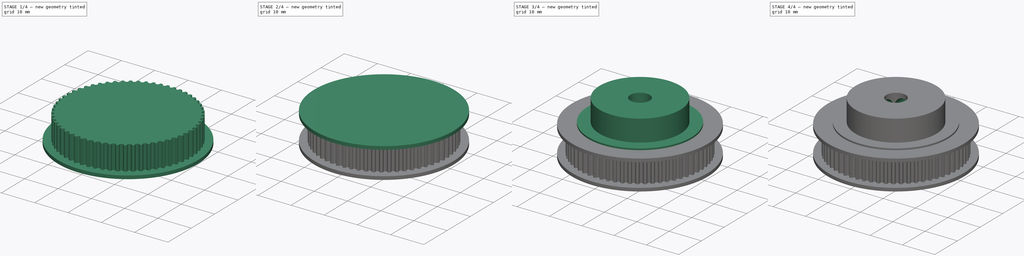
[diagram: build sequence overview — one tinted view per stage of 4, left to right]
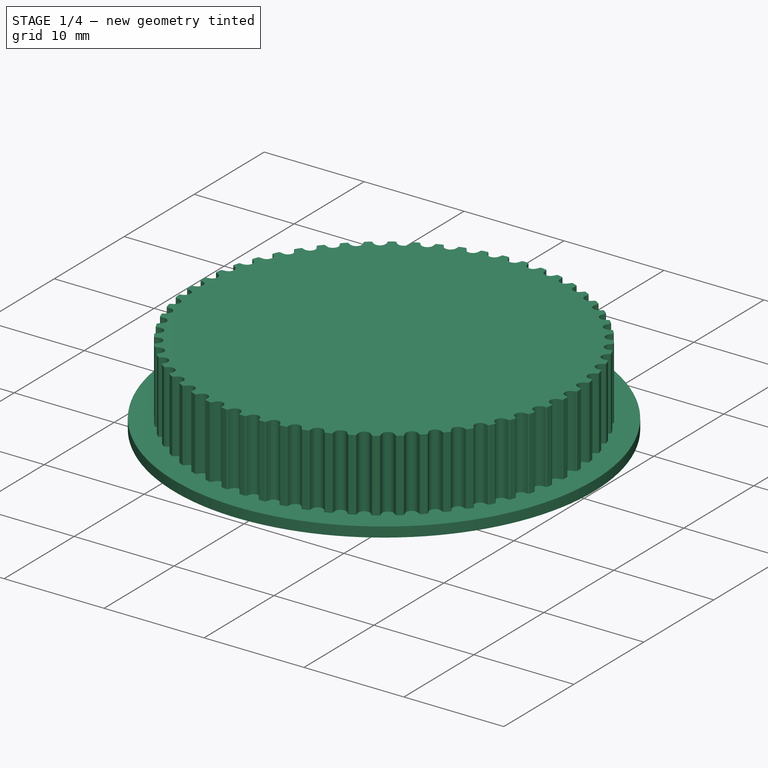
[diagram: stage 1 of 4 — iso view after this stage's code; geometry added in this stage tinted green]
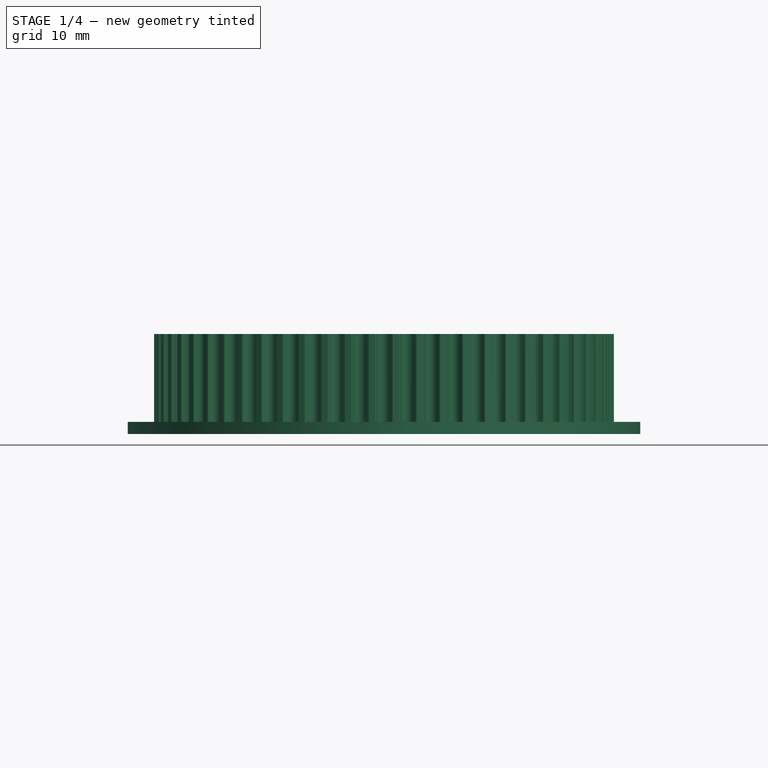
[diagram: stage 1 of 4 — front view after this stage's code; geometry added in this stage tinted green]
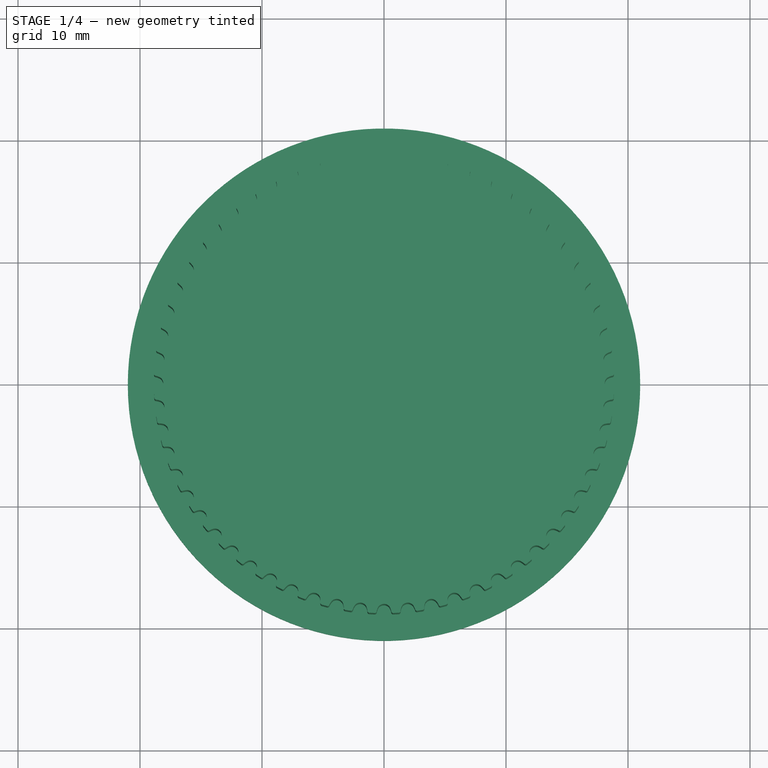
[diagram: stage 1 of 4 — top view after this stage's code; geometry added in this stage tinted green]
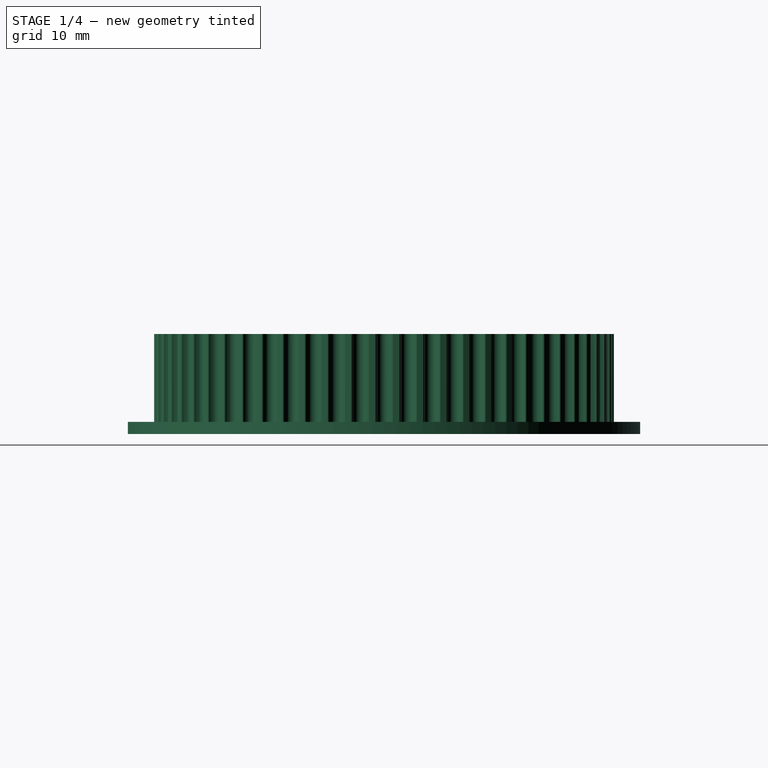
[diagram: stage 1 of 4 — right view after this stage's code; geometry added in this stage tinted green]
FCSTD DOCUMENT  (FreeCAD 0.21R33771 (Git))
Label: timing_pulley_gt2_60teeth_bore6
License: All rights reserved
LicenseURL: http://en.wikipedia.org/wiki/All_rights_reserved
objects: Sketcher::SketchObject×9, PartDesign::Pad×6, PartDesign::Pocket×3, PartDesign::Plane×2, PartDesign::Body×1
note: 30 computed .brp shape members not serialized (recipe doc carries the construction recipe); baked Part::Feature solids carry a one-line shape summary decoded from their .brp

FEATURE [Sketcher::SketchObject] SketchGear
  FullyConstrained = false
  MapMode = 5
  Support = -> [XY_Plane]
  sketch-geometry (360):
    g0: ArcOfCircle CenterX=18.6946 CenterY=-0.75 CenterZ=0 NormalX=0 NormalY=0 NormalZ=1 AngleXU=7e-16 Radius=0.15 StartAngle=0 EndAngle=1.5708
    g1: ArcOfCircle CenterX=19.0406 CenterY=0.82798 CenterZ=0 NormalX=0 NormalY=0 NormalZ=-1 AngleXU=-1.3331 Radius=1.46929 StartAngle=0 EndAngle=0.255762
    g2: ArcOfCircle CenterX=18.654 CenterY=0 CenterZ=0 NormalX=0 NormalY=0 NormalZ=-1 AngleXU=-0.984764 Radius=0.559359 StartAngle=0 EndAngle=1.96953
    g3: ArcOfCircle CenterX=19.0406 CenterY=-0.82798 CenterZ=0 NormalX=0 NormalY=0 NormalZ=-1 AngleXU=1.07734 Radius=1.46929 StartAngle=0 EndAngle=0.255762
    g4: ArcOfCircle CenterX=18.6946 CenterY=0.75 CenterZ=0 NormalX=0 NormalY=0 NormalZ=1 AngleXU=-1.5708 Radius=0.15 StartAngle=0 EndAngle=1.5708
    g5: LineSegment StartX=18.8446 StartY=0.75 StartZ=0 EndX=18.8198 EndY=1.2239 EndZ=0
    g6: ArcOfCircle CenterX=18.6706 CenterY=1.20823 CenterZ=0 NormalX=0 NormalY=0 NormalZ=1 AngleXU=0.10472 Radius=0.15 StartAngle=0 EndAngle=1.5708
    g7: ArcOfCircle CenterX=18.8497 CenterY=2.81373 CenterZ=0 NormalX=0 NormalY=0 NormalZ=-1 AngleXU=-1.43782 Radius=1.46929 StartAngle=0 EndAngle=0.255762
    g8: ArcOfCircle CenterX=18.5518 CenterY=1.94987 CenterZ=0 NormalX=0 NormalY=0 NormalZ=-1 AngleXU=-1.08948 Radius=0.559359 StartAngle=0 EndAngle=1.96953
    g9: ArcOfCircle CenterX=19.0228 CenterY=1.16684 CenterZ=0 NormalX=0 NormalY=0 NormalZ=-1 AngleXU=0.972618 Radius=1.46929 StartAngle=0 EndAngle=0.255762
    g10: ArcOfCircle CenterX=18.5138 CenterY=2.70001 CenterZ=0 NormalX=0 NormalY=0 NormalZ=1 AngleXU=-1.46608 Radius=0.15 StartAngle=0 EndAngle=1.5708
    g11: LineSegment StartX=18.663 StartY=2.71569 StartZ=0 EndX=18.5887 EndY=3.1844 EndZ=0
    g12: ArcOfCircle CenterX=18.442 CenterY=3.15321 CenterZ=0 NormalX=0 NormalY=0 NormalZ=1 AngleXU=0.20944 Radius=0.15 StartAngle=0 EndAngle=1.5708
    g13: ArcOfCircle CenterX=18.4523 CenterY=4.76864 CenterZ=0 NormalX=0 NormalY=0 NormalZ=-1 AngleXU=-1.54254 Radius=1.46929 StartAngle=0 EndAngle=0.255762
    g14: ArcOfCircle CenterX=18.2463 CenterY=3.87837 CenterZ=0 NormalX=0 NormalY=0 NormalZ=-1 AngleXU=-1.1942 Radius=0.559359 StartAngle=0 EndAngle=1.96953
    g15: ArcOfCircle CenterX=18.7966 CenterY=3.14887 CenterZ=0 NormalX=0 NormalY=0 NormalZ=-1 AngleXU=0.867898 Radius=1.46929 StartAngle=0 EndAngle=0.255762
    g16: ArcOfCircle CenterX=18.1301 CenterY=4.62044 CenterZ=0 NormalX=0 NormalY=0 NormalZ=1 AngleXU=-1.36136 Radius=0.15 StartAngle=0 EndAngle=1.5708
    g17: LineSegment StartX=18.2769 StartY=4.65162 StartZ=0 EndX=18.154 EndY=5.11001 EndZ=0
    g18: ArcOfCircle CenterX=18.0114 CenterY=5.06365 CenterZ=0 NormalX=0 NormalY=0 NormalZ=1 AngleXU=0.314159 Radius=0.15 StartAngle=0 EndAngle=1.5708
    g19: ArcOfCircle CenterX=17.8528 CenterY=6.67131 CenterZ=0 NormalX=0 NormalY=0 NormalZ=-1 AngleXU=-1.64726 Radius=1.46929 StartAngle=0 EndAngle=0.255762
    g20: ArcOfCircle CenterX=17.741 CenterY=5.76439 CenterZ=0 NormalX=0 NormalY=0 NormalZ=-1 AngleXU=-1.29892 Radius=0.559359 StartAngle=0 EndAngle=1.96953
    g21: ArcOfCircle CenterX=18.3645 CenterY=5.0964 CenterZ=0 NormalX=0 NormalY=0 NormalZ=-1 AngleXU=0.763178 Radius=1.46929 StartAngle=0 EndAngle=0.255762
    g22: ArcOfCircle CenterX=17.5479 CenterY=6.49024 CenterZ=0 NormalX=0 NormalY=0 NormalZ=1 AngleXU=-1.25664 Radius=0.15 StartAngle=0 EndAngle=1.5708
    g23: LineSegment StartX=17.6905 StartY=6.53659 StartZ=0 EndX=17.5204 EndY=6.97963 EndZ=0
    g24: ArcOfCircle CenterX=17.3834 CenterY=6.91862 CenterZ=0 NormalX=0 NormalY=0 NormalZ=1 AngleXU=0.418879 Radius=0.15 StartAngle=0 EndAngle=1.5708
    g25: ArcOfCircle CenterX=17.0576 CenterY=8.50089 CenterZ=0 NormalX=0 NormalY=0 NormalZ=-1 AngleXU=-1.75198 Radius=1.46929 StartAngle=0 EndAngle=0.255762
    g26: ArcOfCircle CenterX=17.0412 CenterY=7.58725 CenterZ=0 NormalX=0 NormalY=0 NormalZ=-1 AngleXU=-1.40364 Radius=0.559359 StartAngle=0 EndAngle=1.96953
    g27: ArcOfCircle CenterX=17.7312 CenterY=6.9881 CenterZ=0 NormalX=0 NormalY=0 NormalZ=-1 AngleXU=0.658458 Radius=1.46929 StartAngle=0 EndAngle=0.255762
    g28: ArcOfCircle CenterX=16.7733 CenterY=8.28894 CenterZ=0 NormalX=0 NormalY=0 NormalZ=1 AngleXU=-1.15192 Radius=0.15 StartAngle=0 EndAngle=1.5708
    g29: LineSegment StartX=16.9103 StartY=8.34995 StartZ=0 EndX=16.6949 EndY=8.77278 EndZ=0
    g30: ArcOfCircle CenterX=16.565 CenterY=8.69778 CenterZ=0 NormalX=0 NormalY=0 NormalZ=1 AngleXU=0.523599 Radius=0.15 StartAngle=0 EndAngle=1.5708
    g31: ArcOfCircle CenterX=16.0756 CenterY=10.2373 CenterZ=0 NormalX=0 NormalY=0 NormalZ=-1 AngleXU=-1.8567 Radius=1.46929 StartAngle=0 EndAngle=0.255762
    g32: ArcOfCircle CenterX=16.1548 CenterY=9.32698 CenterZ=0 NormalX=0 NormalY=0 NormalZ=-1 AngleXU=-1.50836 Radius=0.559359 StartAngle=0 EndAngle=1.96953
    g33: ArcOfCircle CenterX=16.9036 CenterY=8.80323 CenterZ=0 NormalX=0 NormalY=0 NormalZ=-1 AngleXU=0.553739 Radius=1.46929 StartAngle=0 EndAngle=0.255762
    g34: ArcOfCircle CenterX=15.815 CenterY=9.99682 CenterZ=0 NormalX=0 NormalY=0 NormalZ=1 AngleXU=-1.0472 Radius=0.15 StartAngle=0 EndAngle=1.5708
    g35: LineSegment StartX=15.9449 StartY=10.0718 StartZ=0 EndX=15.6864 EndY=10.4698 EndZ=0
    g36: ArcOfCircle CenterX=15.5651 CenterY=10.3816 CenterZ=0 NormalX=0 NormalY=0 NormalZ=1 AngleXU=0.628319 Radius=0.15 StartAngle=0 EndAngle=1.5708
    g37: ArcOfCircle CenterX=14.9175 CenterY=11.8616 CenterZ=0 NormalX=0 NormalY=0 NormalZ=-1 AngleXU=-1.96142 Radius=1.46929 StartAngle=0 EndAngle=0.255762
    g38: ArcOfCircle CenterX=15.0914 CenterY=10.9645 CenterZ=0 NormalX=0 NormalY=0 NormalZ=-1 AngleXU=-1.61308 Radius=0.559359 StartAngle=0 EndAngle=1.96953
    g39: ArcOfCircle CenterX=15.8908 CenterY=10.5219 CenterZ=0 NormalX=0 NormalY=0 NormalZ=-1 AngleXU=0.449019 Radius=1.46929 StartAngle=0 EndAngle=0.255762
    g40: ArcOfCircle CenterX=14.6834 CenterY=11.5952 CenterZ=0 NormalX=0 NormalY=0 NormalZ=1 AngleXU=-0.942478 Radius=0.15 StartAngle=0 EndAngle=1.5708
    g41: LineSegment StartX=14.8048 StartY=11.6833 StartZ=0 EndX=14.5061 EndY=12.0521 EndZ=0
    g42: ArcOfCircle CenterX=14.3946 CenterY=11.9518 CenterZ=0 NormalX=0 NormalY=0 NormalZ=1 AngleXU=0.733038 Radius=0.15 StartAngle=0 EndAngle=1.5708
    g43: ArcOfCircle CenterX=13.5959 CenterY=13.3559 CenterZ=0 NormalX=0 NormalY=0 NormalZ=-1 AngleXU=-2.06614 Radius=1.46929 StartAngle=0 EndAngle=0.255762
    g44: ArcOfCircle CenterX=13.8626 CenterY=12.4819 CenterZ=0 NormalX=0 NormalY=0 NormalZ=-1 AngleXU=-1.7178 Radius=0.559359 StartAngle=0 EndAngle=1.96953
    g45: ArcOfCircle CenterX=14.7039 CenterY=12.1253 CenterZ=0 NormalX=0 NormalY=0 NormalZ=-1 AngleXU=0.344299 Radius=1.46929 StartAngle=0 EndAngle=0.255762
    g46: ArcOfCircle CenterX=13.3909 CenterY=13.0665 CenterZ=0 NormalX=0 NormalY=0 NormalZ=1 AngleXU=-0.837758 Radius=0.15 StartAngle=0 EndAngle=1.5708
    g47: LineSegment StartX=13.5024 StartY=13.1669 StartZ=0 EndX=13.1669 EndY=13.5024 EndZ=0
    g48: ArcOfCircle CenterX=13.0665 CenterY=13.3909 CenterZ=0 NormalX=0 NormalY=0 NormalZ=1 AngleXU=0.837758 Radius=0.15 StartAngle=0 EndAngle=1.5708
    g49: ArcOfCircle CenterX=12.1253 CenterY=14.7039 CenterZ=0 NormalX=0 NormalY=0 NormalZ=-1 AngleXU=-2.17086 Radius=1.46929 StartAngle=0 EndAngle=0.255762
    g50: ArcOfCircle CenterX=12.4819 CenterY=13.8626 CenterZ=0 NormalX=0 NormalY=0 NormalZ=-1 AngleXU=-1.82252 Radius=0.559359 StartAngle=0 EndAngle=1.96953
    g51: ArcOfCircle CenterX=13.3559 CenterY=13.5959 CenterZ=0 NormalX=0 NormalY=0 NormalZ=-1 AngleXU=0.239579 Radius=1.46929 StartAngle=0 EndAngle=0.255762
    g52: ArcOfCircle CenterX=11.9518 CenterY=14.3946 CenterZ=0 NormalX=0 NormalY=0 NormalZ=1 AngleXU=-0.733038 Radius=0.15 StartAngle=0 EndAngle=1.5708
    g53: LineSegment StartX=12.0521 StartY=14.5061 StartZ=0 EndX=11.6833 EndY=14.8048 EndZ=0
    g54: ArcOfCircle CenterX=11.5952 CenterY=14.6834 CenterZ=0 NormalX=0 NormalY=0 NormalZ=1 AngleXU=0.942478 Radius=0.15 StartAngle=0 EndAngle=1.5708
    g55: ArcOfCircle CenterX=10.5219 CenterY=15.8908 CenterZ=0 NormalX=0 NormalY=0 NormalZ=-1 AngleXU=-2.27558 Radius=1.46929 StartAngle=0 EndAngle=0.255762
    g56: ArcOfCircle CenterX=10.9645 CenterY=15.0914 CenterZ=0 NormalX=0 NormalY=0 NormalZ=-1 AngleXU=-1.92724 Radius=0.559359 StartAngle=0 EndAngle=1.96953
    g57: ArcOfCircle CenterX=11.8616 CenterY=14.9175 CenterZ=0 NormalX=0 NormalY=0 NormalZ=-1 AngleXU=0.13486 Radius=1.46929 StartAngle=0 EndAngle=0.255762
    g58: ArcOfCircle CenterX=10.3816 CenterY=15.5651 CenterZ=0 NormalX=0 NormalY=0 NormalZ=1 AngleXU=-0.628319 Radius=0.15 StartAngle=0 EndAngle=1.5708
    g59: LineSegment StartX=10.4698 StartY=15.6864 StartZ=0 EndX=10.0718 EndY=15.9449 EndZ=0
    g60: ArcOfCircle CenterX=9.99682 CenterY=15.815 CenterZ=0 NormalX=0 NormalY=0 NormalZ=1 AngleXU=1.0472 Radius=0.15 StartAngle=0 EndAngle=1.5708
    g61: ArcOfCircle CenterX=8.80323 CenterY=16.9036 CenterZ=0 NormalX=0 NormalY=0 NormalZ=-1 AngleXU=-2.3803 Radius=1.46929 StartAngle=0 EndAngle=0.255762
    g62: ArcOfCircle CenterX=9.32698 CenterY=16.1548 CenterZ=0 NormalX=0 NormalY=0 NormalZ=-1 AngleXU=-2.03196 Radius=0.559359 StartAngle=0 EndAngle=1.96953
    g63: ArcOfCircle CenterX=10.2373 CenterY=16.0756 CenterZ=0 NormalX=0 NormalY=0 NormalZ=-1 AngleXU=0.0301399 Radius=1.46929 StartAngle=0 EndAngle=0.255762
    g64: ArcOfCircle CenterX=8.69778 CenterY=16.565 CenterZ=0 NormalX=0 NormalY=0 NormalZ=1 AngleXU=-0.523599 Radius=0.15 StartAngle=0 EndAngle=1.5708
    g65: LineSegment StartX=8.77278 StartY=16.6949 StartZ=0 EndX=8.34995 EndY=16.9103 EndZ=0
    g66: ArcOfCircle CenterX=8.28894 CenterY=16.7733 CenterZ=0 NormalX=0 NormalY=0 NormalZ=1 AngleXU=1.15192 Radius=0.15 StartAngle=0 EndAngle=1.5708
    g67: ArcOfCircle CenterX=6.9881 CenterY=17.7312 CenterZ=0 NormalX=0 NormalY=0 NormalZ=-1 AngleXU=-2.48502 Radius=1.46929 StartAngle=0 EndAngle=0.255762
    g68: ArcOfCircle CenterX=7.58725 CenterY=17.0412 CenterZ=0 NormalX=0 NormalY=0 NormalZ=-1 AngleXU=-2.13668 Radius=0.559359 StartAngle=0 EndAngle=1.96953
    g69: ArcOfCircle CenterX=8.50089 CenterY=17.0576 CenterZ=0 NormalX=0 NormalY=0 NormalZ=-1 AngleXU=-0.0745798 Radius=1.46929 StartAngle=0 EndAngle=0.255762
    g70: ArcOfCircle CenterX=6.91862 CenterY=17.3834 CenterZ=0 NormalX=0 NormalY=0 NormalZ=1 AngleXU=-0.418879 Radius=0.15 StartAngle=0 EndAngle=1.5708
    g71: LineSegment StartX=6.97963 StartY=17.5204 StartZ=0 EndX=6.53659 EndY=17.6905 EndZ=0
    g72: ArcOfCircle CenterX=6.49024 CenterY=17.5479 CenterZ=0 NormalX=0 NormalY=0 NormalZ=1 AngleXU=1.25664 Radius=0.15 StartAngle=0 EndAngle=1.5708
    g73: ArcOfCircle CenterX=5.0964 CenterY=18.3645 CenterZ=0 NormalX=0 NormalY=0 NormalZ=-1 AngleXU=-2.58974 Radius=1.46929 StartAngle=0 EndAngle=0.255762
    g74: ArcOfCircle CenterX=5.76439 CenterY=17.741 CenterZ=0 NormalX=0 NormalY=0 NormalZ=-1 AngleXU=-2.2414 Radius=0.559359 StartAngle=0 EndAngle=1.96953
    g75: ArcOfCircle CenterX=6.67131 CenterY=17.8528 CenterZ=0 NormalX=0 NormalY=0 NormalZ=-1 AngleXU=-0.1793 Radius=1.46929 StartAngle=0 EndAngle=0.255762
    g76: ArcOfCircle CenterX=5.06365 CenterY=18.0114 CenterZ=0 NormalX=0 NormalY=0 NormalZ=1 AngleXU=-0.314159 Radius=0.15 StartAngle=0 EndAngle=1.5708
    g77: LineSegment StartX=5.11001 StartY=18.154 StartZ=0 EndX=4.65162 EndY=18.2769 EndZ=0
    g78: ArcOfCircle CenterX=4.62044 CenterY=18.1301 CenterZ=0 NormalX=0 NormalY=0 NormalZ=1 AngleXU=1.36136 Radius=0.15 StartAngle=0 EndAngle=1.5708
    g79: ArcOfCircle CenterX=3.14887 CenterY=18.7966 CenterZ=0 NormalX=0 NormalY=0 NormalZ=-1 AngleXU=-2.69446 Radius=1.46929 StartAngle=0 EndAngle=0.255762
    g80: ArcOfCircle CenterX=3.87837 CenterY=18.2463 CenterZ=0 NormalX=0 NormalY=0 NormalZ=-1 AngleXU=-2.34612 Radius=0.559359 StartAngle=0 EndAngle=1.96953
    g81: ArcOfCircle CenterX=4.76864 CenterY=18.4523 CenterZ=0 NormalX=0 NormalY=0 NormalZ=-1 AngleXU=-0.284019 Radius=1.46929 StartAngle=0 EndAngle=0.255762
    g82: ArcOfCircle CenterX=3.15321 CenterY=18.442 CenterZ=0 NormalX=0 NormalY=0 NormalZ=1 AngleXU=-0.20944 Radius=0.15 StartAngle=0 EndAngle=1.5708
    g83: LineSegment StartX=3.1844 StartY=18.5887 StartZ=0 EndX=2.71569 EndY=18.663 EndZ=0
    g84: ArcOfCircle CenterX=2.70001 CenterY=18.5138 CenterZ=0 NormalX=0 NormalY=0 NormalZ=1 AngleXU=1.46608 Radius=0.15 StartAngle=0 EndAngle=1.5708
    g85: ArcOfCircle CenterX=1.16684 CenterY=19.0228 CenterZ=0 NormalX=0 NormalY=0 NormalZ=-1 AngleXU=-2.79918 Radius=1.46929 StartAngle=0 EndAngle=0.255762
    g86: ArcOfCircle CenterX=1.94987 CenterY=18.5518 CenterZ=0 NormalX=0 NormalY=0 NormalZ=-1 AngleXU=-2.45084 Radius=0.559359 StartAngle=0 EndAngle=1.96953
    g87: ArcOfCircle CenterX=2.81373 CenterY=18.8497 CenterZ=0 NormalX=0 NormalY=0 NormalZ=-1 AngleXU=-0.388739 Radius=1.46929 StartAngle=0 EndAngle=0.255762
    g88: ArcOfCircle CenterX=1.20823 CenterY=18.6706 CenterZ=0 NormalX=0 NormalY=0 NormalZ=1 AngleXU=-0.10472 Radius=0.15 StartAngle=0 EndAngle=1.5708
    g89: LineSegment StartX=1.2239 StartY=18.8198 StartZ=0 EndX=0.75 EndY=18.8446 EndZ=0
    g90: ArcOfCircle CenterX=0.75 CenterY=18.6946 CenterZ=0 NormalX=0 NormalY=0 NormalZ=1 AngleXU=1.5708 Radius=0.15 StartAngle=0 EndAngle=1.5708
    g91: ArcOfCircle CenterX=-0.82798 CenterY=19.0406 CenterZ=0 NormalX=0 NormalY=0 NormalZ=-1 AngleXU=-2.9039 Radius=1.46929 StartAngle=0 EndAngle=0.255762
    g92: ArcOfCircle CenterX=1.1e-15 CenterY=18.654 CenterZ=0 NormalX=0 NormalY=0 NormalZ=-1 AngleXU=-2.55556 Radius=0.559359 StartAngle=0 EndAngle=1.96953
    g93: ArcOfCircle CenterX=0.82798 CenterY=19.0406 CenterZ=0 NormalX=0 NormalY=0 NormalZ=-1 AngleXU=-0.493459 Radius=1.46929 StartAngle=0 EndAngle=0.255762
    g94: ArcOfCircle CenterX=-0.75 CenterY=18.6946 CenterZ=0 NormalX=0 NormalY=0 NormalZ=1 AngleXU=0 Radius=0.15 StartAngle=0 EndAngle=1.5708
    g95: LineSegment StartX=-0.75 StartY=18.8446 StartZ=0 EndX=-1.2239 EndY=18.8198 EndZ=0
    g96: ArcOfCircle CenterX=-1.20823 CenterY=18.6706 CenterZ=0 NormalX=0 NormalY=0 NormalZ=1 AngleXU=1.67552 Radius=0.15 StartAngle=0 EndAngle=1.5708
    g97: ArcOfCircle CenterX=-2.81373 CenterY=18.8497 CenterZ=0 NormalX=0 NormalY=0 NormalZ=-1 AngleXU=-3.00862 Radius=1.46929 StartAngle=0 EndAngle=0.255762
    g98: ArcOfCircle CenterX=-1.94987 CenterY=18.5518 CenterZ=0 NormalX=0 NormalY=0 NormalZ=-1 AngleXU=-2.66028 Radius=0.559359 StartAngle=0 EndAngle=1.96953
    g99: ArcOfCircle CenterX=-1.16684 CenterY=19.0228 CenterZ=0 NormalX=0 NormalY=0 NormalZ=-1 AngleXU=-0.598179 Radius=1.46929 StartAngle=0 EndAngle=0.255762
    g100: ArcOfCircle CenterX=-2.70001 CenterY=18.5138 CenterZ=0 NormalX=0 NormalY=0 NormalZ=1 AngleXU=0.10472 Radius=0.15 StartAngle=0 EndAngle=1.5708
    g101: LineSegment StartX=-2.71569 StartY=18.663 StartZ=0 EndX=-3.1844 EndY=18.5887 EndZ=0
    g102: ArcOfCircle CenterX=-3.15321 CenterY=18.442 CenterZ=0 NormalX=0 NormalY=0 NormalZ=1 AngleXU=1.78024 Radius=0.15 StartAngle=0 EndAngle=1.5708
    g103: ArcOfCircle CenterX=-4.76864 CenterY=18.4523 CenterZ=0 NormalX=0 NormalY=0 NormalZ=-1 AngleXU=-3.11334 Radius=1.46929 StartAngle=0 EndAngle=0.255762
    g104: ArcOfCircle CenterX=-3.87837 CenterY=18.2463 CenterZ=0 NormalX=0 NormalY=0 NormalZ=-1 AngleXU=-2.765 Radius=0.559359 StartAngle=0 EndAngle=1.96953
    g105: ArcOfCircle CenterX=-3.14887 CenterY=18.7966 CenterZ=0 NormalX=0 NormalY=0 NormalZ=-1 AngleXU=-0.702898 Radius=1.46929 StartAngle=0 EndAngle=0.255762
    g106: ArcOfCircle CenterX=-4.62044 CenterY=18.1301 CenterZ=0 NormalX=0 NormalY=0 NormalZ=1 AngleXU=0.20944 Radius=0.15 StartAngle=0 EndAngle=1.5708
    g107: LineSegment StartX=-4.65162 StartY=18.2769 StartZ=0 EndX=-5.11001 EndY=18.154 EndZ=0
    g108: ArcOfCircle CenterX=-5.06365 CenterY=18.0114 CenterZ=0 NormalX=0 NormalY=0 NormalZ=1 AngleXU=1.88496 Radius=0.15 StartAngle=0 EndAngle=1.5708
    g109: ArcOfCircle CenterX=-6.67131 CenterY=17.8528 CenterZ=0 NormalX=0 NormalY=0 NormalZ=-1 AngleXU=3.06513 Radius=1.46929 StartAngle=0 EndAngle=0.255762
    g110: ArcOfCircle CenterX=-5.76439 CenterY=17.741 CenterZ=0 NormalX=0 NormalY=0 NormalZ=-1 AngleXU=-2.86972 Radius=0.559359 StartAngle=0 EndAngle=1.96953
    g111: ArcOfCircle CenterX=-5.0964 CenterY=18.3645 CenterZ=0 NormalX=0 NormalY=0 NormalZ=-1 AngleXU=-0.807618 Radius=1.46929 StartAngle=0 EndAngle=0.255762
    g112: ArcOfCircle CenterX=-6.49024 CenterY=17.5479 CenterZ=0 NormalX=0 NormalY=0 NormalZ=1 AngleXU=0.314159 Radius=0.15 StartAngle=0 EndAngle=1.5708
    g113: LineSegment StartX=-6.53659 StartY=17.6905 StartZ=0 EndX=-6.97963 EndY=17.5204 EndZ=0
    g114: ArcOfCircle CenterX=-6.91862 CenterY=17.3834 CenterZ=0 NormalX=0 NormalY=0 NormalZ=1 AngleXU=1.98968 Radius=0.15 StartAngle=0 EndAngle=1.5708
    g115: ArcOfCircle CenterX=-8.50089 CenterY=17.0576 CenterZ=0 NormalX=0 NormalY=0 NormalZ=-1 AngleXU=2.96041 Radius=1.46929 StartAngle=0 EndAngle=0.255762
    g116: ArcOfCircle CenterX=-7.58725 CenterY=17.0412 CenterZ=0 NormalX=0 NormalY=0 NormalZ=-1 AngleXU=-2.97444 Radius=0.559359 StartAngle=0 EndAngle=1.96953
    g117: ArcOfCircle CenterX=-6.9881 CenterY=17.7312 CenterZ=0 NormalX=0 NormalY=0 NormalZ=-1 AngleXU=-0.912338 Radius=1.46929 StartAngle=0 EndAngle=0.255762
    g118: ArcOfCircle CenterX=-8.28894 CenterY=16.7733 CenterZ=0 NormalX=0 NormalY=0 NormalZ=1 AngleXU=0.418879 Radius=0.15 StartAngle=0 EndAngle=1.5708
    g119: LineSegment StartX=-8.34995 StartY=16.9103 StartZ=0 EndX=-8.77278 EndY=16.6949 EndZ=0
    g120: ArcOfCircle CenterX=-8.69778 CenterY=16.565 CenterZ=0 NormalX=0 NormalY=0 NormalZ=1 AngleXU=2.0944 Radius=0.15 StartAngle=0 EndAngle=1.5708
    g121: ArcOfCircle CenterX=-10.2373 CenterY=16.0756 CenterZ=0 NormalX=0 NormalY=0 NormalZ=-1 AngleXU=2.85569 Radius=1.46929 StartAngle=0 EndAngle=0.255762
    g122: ArcOfCircle CenterX=-9.32698 CenterY=16.1548 CenterZ=0 NormalX=0 NormalY=0 NormalZ=-1 AngleXU=-3.07916 Radius=0.559359 StartAngle=0 EndAngle=1.96953
    g123: ArcOfCircle CenterX=-8.80323 CenterY=16.9036 CenterZ=0 NormalX=0 NormalY=0 NormalZ=-1 AngleXU=-1.01706 Radius=1.46929 StartAngle=0 EndAngle=0.255762
    g124: ArcOfCircle CenterX=-9.99682 CenterY=15.815 CenterZ=0 NormalX=0 NormalY=0 NormalZ=1 AngleXU=0.523599 Radius=0.15 StartAngle=0 EndAngle=1.5708
    g125: LineSegment StartX=-10.0718 StartY=15.9449 StartZ=0 EndX=-10.4698 EndY=15.6864 EndZ=0
    g126: ArcOfCircle CenterX=-10.3816 CenterY=15.5651 CenterZ=0 NormalX=0 NormalY=0 NormalZ=1 AngleXU=2.19911 Radius=0.15 StartAngle=0 EndAngle=1.5708
    g127: ArcOfCircle CenterX=-11.8616 CenterY=14.9175 CenterZ=0 NormalX=0 NormalY=0 NormalZ=-1 AngleXU=2.75097 Radius=1.46929 StartAngle=0 EndAngle=0.255762
    g128: ArcOfCircle CenterX=-10.9645 CenterY=15.0914 CenterZ=0 NormalX=0 NormalY=0 NormalZ=-1 AngleXU=3.09931 Radius=0.559359 StartAngle=0 EndAngle=1.96953
    g129: ArcOfCircle CenterX=-10.5219 CenterY=15.8908 CenterZ=0 NormalX=0 NormalY=0 NormalZ=-1 AngleXU=-1.12178 Radius=1.46929 StartAngle=0 EndAngle=0.255762
    g130: ArcOfCircle CenterX=-11.5952 CenterY=14.6834 CenterZ=0 NormalX=0 NormalY=0 NormalZ=1 AngleXU=0.628319 Radius=0.15 StartAngle=0 EndAngle=1.5708
    g131: LineSegment StartX=-11.6833 StartY=14.8048 StartZ=0 EndX=-12.0521 EndY=14.5061 EndZ=0
    g132: ArcOfCircle CenterX=-11.9518 CenterY=14.3946 CenterZ=0 NormalX=0 NormalY=0 NormalZ=1 AngleXU=2.30383 Radius=0.15 StartAngle=0 EndAngle=1.5708
    g133: ArcOfCircle CenterX=-13.3559 CenterY=13.5959 CenterZ=0 NormalX=0 NormalY=0 NormalZ=-1 AngleXU=2.64625 Radius=1.46929 StartAngle=0 EndAngle=0.255762
    g134: ArcOfCircle CenterX=-12.4819 CenterY=13.8626 CenterZ=0 NormalX=0 NormalY=0 NormalZ=-1 AngleXU=2.99459 Radius=0.559359 StartAngle=0 EndAngle=1.96953
    g135: ArcOfCircle CenterX=-12.1253 CenterY=14.7039 CenterZ=0 NormalX=0 NormalY=0 NormalZ=-1 AngleXU=-1.2265 Radius=1.46929 StartAngle=0 EndAngle=0.255762
    g136: ArcOfCircle CenterX=-13.0665 CenterY=13.3909 CenterZ=0 NormalX=0 NormalY=0 NormalZ=1 AngleXU=0.733038 Radius=0.15 StartAngle=0 EndAngle=1.5708
    g137: LineSegment StartX=-13.1669 StartY=13.5024 StartZ=0 EndX=-13.5024 EndY=13.1669 EndZ=0
    g138: ArcOfCircle CenterX=-13.3909 CenterY=13.0665 CenterZ=0 NormalX=0 NormalY=0 NormalZ=1 AngleXU=2.40855 Radius=0.15 StartAngle=0 EndAngle=1.5708
    g139: ArcOfCircle CenterX=-14.7039 CenterY=12.1253 CenterZ=0 NormalX=0 NormalY=0 NormalZ=-1 AngleXU=2.54153 Radius=1.46929 StartAngle=0 EndAngle=0.255762
    g140: ArcOfCircle CenterX=-13.8626 CenterY=12.4819 CenterZ=0 NormalX=0 NormalY=0 NormalZ=-1 AngleXU=2.88987 Radius=0.559359 StartAngle=0 EndAngle=1.96953
    g141: ArcOfCircle CenterX=-13.5959 CenterY=13.3559 CenterZ=0 NormalX=0 NormalY=0 NormalZ=-1 AngleXU=-1.33122 Radius=1.46929 StartAngle=0 EndAngle=0.255762
    g142: ArcOfCircle CenterX=-14.3946 CenterY=11.9518 CenterZ=0 NormalX=0 NormalY=0 NormalZ=1 AngleXU=0.837758 Radius=0.15 StartAngle=0 EndAngle=1.5708
    g143: LineSegment StartX=-14.5061 StartY=12.0521 StartZ=0 EndX=-14.8048 EndY=11.6833 EndZ=0
    g144: ArcOfCircle CenterX=-14.6834 CenterY=11.5952 CenterZ=0 NormalX=0 NormalY=0 NormalZ=1 AngleXU=2.51327 Radius=0.15 StartAngle=0 EndAngle=1.5708
    g145: ArcOfCircle CenterX=-15.8908 CenterY=10.5219 CenterZ=0 NormalX=0 NormalY=0 NormalZ=-1 AngleXU=2.43681 Radius=1.46929 StartAngle=0 EndAngle=0.255762
    g146: ArcOfCircle CenterX=-15.0914 CenterY=10.9645 CenterZ=0 NormalX=0 NormalY=0 NormalZ=-1 AngleXU=2.78515 Radius=0.559359 StartAngle=0 EndAngle=1.96953
    g147: ArcOfCircle CenterX=-14.9175 CenterY=11.8616 CenterZ=0 NormalX=0 NormalY=0 NormalZ=-1 AngleXU=-1.43594 Radius=1.46929 StartAngle=0 EndAngle=0.255762
    g148: ArcOfCircle CenterX=-15.5651 CenterY=10.3816 CenterZ=0 NormalX=0 NormalY=0 NormalZ=1 AngleXU=0.942478 Radius=0.15 StartAngle=0 EndAngle=1.5708
    g149: LineSegment StartX=-15.6864 StartY=10.4698 StartZ=0 EndX=-15.9449 EndY=10.0718 EndZ=0
    g150: ArcOfCircle CenterX=-15.815 CenterY=9.99682 CenterZ=0 NormalX=0 NormalY=0 NormalZ=1 AngleXU=2.61799 Radius=0.15 StartAngle=0 EndAngle=1.5708
    g151: ArcOfCircle CenterX=-16.9036 CenterY=8.80323 CenterZ=0 NormalX=0 NormalY=0 NormalZ=-1 AngleXU=2.33209 Radius=1.46929 StartAngle=0 EndAngle=0.255762
    g152: ArcOfCircle CenterX=-16.1548 CenterY=9.32698 CenterZ=0 NormalX=0 NormalY=0 NormalZ=-1 AngleXU=2.68043 Radius=0.559359 StartAngle=0 EndAngle=1.96953
    g153: ArcOfCircle CenterX=-16.0756 CenterY=10.2373 CenterZ=0 NormalX=0 NormalY=0 NormalZ=-1 AngleXU=-1.54066 Radius=1.46929 StartAngle=0 EndAngle=0.255762
    g154: ArcOfCircle CenterX=-16.565 CenterY=8.69778 CenterZ=0 NormalX=0 NormalY=0 NormalZ=1 AngleXU=1.0472 Radius=0.15 StartAngle=0 EndAngle=1.5708
    g155: LineSegment StartX=-16.6949 StartY=8.77278 StartZ=0 EndX=-16.9103 EndY=8.34995 EndZ=0
    g156: ArcOfCircle CenterX=-16.7733 CenterY=8.28894 CenterZ=0 NormalX=0 NormalY=0 NormalZ=1 AngleXU=2.72271 Radius=0.15 StartAngle=0 EndAngle=1.5708
    g157: ArcOfCircle CenterX=-17.7312 CenterY=6.9881 CenterZ=0 NormalX=0 NormalY=0 NormalZ=-1 AngleXU=2.22737 Radius=1.46929 StartAngle=0 EndAngle=0.255762
    g158: ArcOfCircle CenterX=-17.0412 CenterY=7.58725 CenterZ=0 NormalX=0 NormalY=0 NormalZ=-1 AngleXU=2.57571 Radius=0.559359 StartAngle=0 EndAngle=1.96953
    g159: ArcOfCircle CenterX=-17.0576 CenterY=8.50089 CenterZ=0 NormalX=0 NormalY=0 NormalZ=-1 AngleXU=-1.64538 Radius=1.46929 StartAngle=0 EndAngle=0.255762
    g160: ArcOfCircle CenterX=-17.3834 CenterY=6.91862 CenterZ=0 NormalX=0 NormalY=0 NormalZ=1 AngleXU=1.15192 Radius=0.15 StartAngle=0 EndAngle=1.5708
    g161: LineSegment StartX=-17.5204 StartY=6.97963 StartZ=0 EndX=-17.6905 EndY=6.53659 EndZ=0
    g162: ArcOfCircle CenterX=-17.5479 CenterY=6.49024 CenterZ=0 NormalX=0 NormalY=0 NormalZ=1 AngleXU=2.82743 Radius=0.15 StartAngle=0 EndAngle=1.5708
    g163: ArcOfCircle CenterX=-18.3645 CenterY=5.0964 CenterZ=0 NormalX=0 NormalY=0 NormalZ=-1 AngleXU=2.12265 Radius=1.46929 StartAngle=0 EndAngle=0.255762
    g164: ArcOfCircle CenterX=-17.741 CenterY=5.76439 CenterZ=0 NormalX=0 NormalY=0 NormalZ=-1 AngleXU=2.47099 Radius=0.559359 StartAngle=0 EndAngle=1.96953
    g165: ArcOfCircle CenterX=-17.8528 CenterY=6.67131 CenterZ=0 NormalX=0 NormalY=0 NormalZ=-1 AngleXU=-1.7501 Radius=1.46929 StartAngle=0 EndAngle=0.255762
    g166: ArcOfCircle CenterX=-18.0114 CenterY=5.06365 CenterZ=0 NormalX=0 NormalY=0 NormalZ=1 AngleXU=1.25664 Radius=0.15 StartAngle=0 EndAngle=1.5708
    g167: LineSegment StartX=-18.154 StartY=5.11001 StartZ=0 EndX=-18.2769 EndY=4.65162 EndZ=0
    g168: ArcOfCircle CenterX=-18.1301 CenterY=4.62044 CenterZ=0 NormalX=0 NormalY=0 NormalZ=1 AngleXU=2.93215 Radius=0.15 StartAngle=0 EndAngle=1.5708
    g169: ArcOfCircle CenterX=-18.7966 CenterY=3.14887 CenterZ=0 NormalX=0 NormalY=0 NormalZ=-1 AngleXU=2.01793 Radius=1.46929 StartAngle=0 EndAngle=0.255762
    g170: ArcOfCircle CenterX=-18.2463 CenterY=3.87837 CenterZ=0 NormalX=0 NormalY=0 NormalZ=-1 AngleXU=2.36627 Radius=0.559359 StartAngle=0 EndAngle=1.96953
    g171: ArcOfCircle CenterX=-18.4523 CenterY=4.76864 CenterZ=0 NormalX=0 NormalY=0 NormalZ=-1 AngleXU=-1.85482 Radius=1.46929 StartAngle=0 EndAngle=0.255762
    g172: ArcOfCircle CenterX=-18.442 CenterY=3.15321 CenterZ=0 NormalX=0 NormalY=0 NormalZ=1 AngleXU=1.36136 Radius=0.15 StartAngle=0 EndAngle=1.5708
    g173: LineSegment StartX=-18.5887 StartY=3.1844 StartZ=0 EndX=-18.663 EndY=2.71569 EndZ=0
    g174: ArcOfCircle CenterX=-18.5138 CenterY=2.70001 CenterZ=0 NormalX=0 NormalY=0 NormalZ=1 AngleXU=3.03687 Radius=0.15 StartAngle=0 EndAngle=1.5708
    g175: ArcOfCircle CenterX=-19.0228 CenterY=1.16684 CenterZ=0 NormalX=0 NormalY=0 NormalZ=-1 AngleXU=1.91321 Radius=1.46929 StartAngle=0 EndAngle=0.255762
    g176: ArcOfCircle CenterX=-18.5518 CenterY=1.94987 CenterZ=0 NormalX=0 NormalY=0 NormalZ=-1 AngleXU=2.26155 Radius=0.559359 StartAngle=0 EndAngle=1.96953
    g177: ArcOfCircle CenterX=-18.8497 CenterY=2.81373 CenterZ=0 NormalX=0 NormalY=0 NormalZ=-1 AngleXU=-1.95954 Radius=1.46929 StartAngle=0 EndAngle=0.255762
    g178: ArcOfCircle CenterX=-18.6706 CenterY=1.20823 CenterZ=0 NormalX=0 NormalY=0 NormalZ=1 AngleXU=1.46608 Radius=0.15 StartAngle=0 EndAngle=1.5708
    g179: LineSegment StartX=-18.8198 StartY=1.2239 StartZ=0 EndX=-18.8446 EndY=0.75 EndZ=0
    g180: ArcOfCircle CenterX=-18.6946 CenterY=0.75 CenterZ=0 NormalX=0 NormalY=0 NormalZ=1 AngleXU=-3.14159 Radius=0.15 StartAngle=0 EndAngle=1.5708
    g181: ArcOfCircle CenterX=-19.0406 CenterY=-0.82798 CenterZ=0 NormalX=0 NormalY=0 NormalZ=-1 AngleXU=1.80849 Radius=1.46929 StartAngle=0 EndAngle=0.255762
    g182: ArcOfCircle CenterX=-18.654 CenterY=2.3e-15 CenterZ=0 NormalX=0 NormalY=0 NormalZ=-1 AngleXU=2.15683 Radius=0.559359 StartAngle=0 EndAngle=1.96953
    g183: ArcOfCircle CenterX=-19.0406 CenterY=0.82798 CenterZ=0 NormalX=0 NormalY=0 NormalZ=-1 AngleXU=-2.06426 Radius=1.46929 StartAngle=0 EndAngle=0.255762
    g184: ArcOfCircle CenterX=-18.6946 CenterY=-0.75 CenterZ=0 NormalX=0 NormalY=0 NormalZ=1 AngleXU=1.5708 Radius=0.15 StartAngle=0 EndAngle=1.5708
    g185: LineSegment StartX=-18.8446 StartY=-0.75 StartZ=0 EndX=-18.8198 EndY=-1.2239 EndZ=0
    g186: ArcOfCircle CenterX=-18.6706 CenterY=-1.20823 CenterZ=0 NormalX=0 NormalY=0 NormalZ=1 AngleXU=-3.03687 Radius=0.15 StartAngle=0 EndAngle=1.5708
    g187: ArcOfCircle CenterX=-18.8497 CenterY=-2.81373 CenterZ=0 NormalX=0 NormalY=0 NormalZ=-1 AngleXU=1.70377 Radius=1.46929 StartAngle=0 EndAngle=0.255762
    g188: ArcOfCircle CenterX=-18.5518 CenterY=-1.94987 CenterZ=0 NormalX=0 NormalY=0 NormalZ=-1 AngleXU=2.05211 Radius=0.559359 StartAngle=0 EndAngle=1.96953
    g189: ArcOfCircle CenterX=-19.0228 CenterY=-1.16684 CenterZ=0 NormalX=0 NormalY=0 NormalZ=-1 AngleXU=-2.16897 Radius=1.46929 StartAngle=0 EndAngle=0.255762
    g190: ArcOfCircle CenterX=-18.5138 CenterY=-2.70001 CenterZ=0 NormalX=0 NormalY=0 NormalZ=1 AngleXU=1.67552 Radius=0.15 StartAngle=0 EndAngle=1.5708
    g191: LineSegment StartX=-18.663 StartY=-2.71569 StartZ=0 EndX=-18.5887 EndY=-3.1844 EndZ=0
    g192: ArcOfCircle CenterX=-18.442 CenterY=-3.15321 CenterZ=0 NormalX=0 NormalY=0 NormalZ=1 AngleXU=-2.93215 Radius=0.15 StartAngle=0 EndAngle=1.5708
    g193: ArcOfCircle CenterX=-18.4523 CenterY=-4.76864 CenterZ=0 NormalX=0 NormalY=0 NormalZ=-1 AngleXU=1.59905 Radius=1.46929 StartAngle=0 EndAngle=0.255762
    g194: ArcOfCircle CenterX=-18.2463 CenterY=-3.87837 CenterZ=0 NormalX=0 NormalY=0 NormalZ=-1 AngleXU=1.94739 Radius=0.559359 StartAngle=0 EndAngle=1.96953
    g195: ArcOfCircle CenterX=-18.7966 CenterY=-3.14887 CenterZ=0 NormalX=0 NormalY=0 NormalZ=-1 AngleXU=-2.27369 Radius=1.46929 StartAngle=0 EndAngle=0.255762
    g196: ArcOfCircle CenterX=-18.1301 CenterY=-4.62044 CenterZ=0 NormalX=0 NormalY=0 NormalZ=1 AngleXU=1.78024 Radius=0.15 StartAngle=0 EndAngle=1.5708
    g197: LineSegment StartX=-18.2769 StartY=-4.65162 StartZ=0 EndX=-18.154 EndY=-5.11001 EndZ=0
    g198: ArcOfCircle CenterX=-18.0114 CenterY=-5.06365 CenterZ=0 NormalX=0 NormalY=0 NormalZ=1 AngleXU=-2.82743 Radius=0.15 StartAngle=0 EndAngle=1.5708
    g199: ArcOfCircle CenterX=-17.8528 CenterY=-6.67131 CenterZ=0 NormalX=0 NormalY=0 NormalZ=-1 AngleXU=1.49433 Radius=1.46929 StartAngle=0 EndAngle=0.255762
    g200: ArcOfCircle CenterX=-17.741 CenterY=-5.76439 CenterZ=0 NormalX=0 NormalY=0 NormalZ=-1 AngleXU=1.84267 Radius=0.559359 StartAngle=0 EndAngle=1.96953
    g201: ArcOfCircle CenterX=-18.3645 CenterY=-5.0964 CenterZ=0 NormalX=0 NormalY=0 NormalZ=-1 AngleXU=-2.37841 Radius=1.46929 StartAngle=0 EndAngle=0.255762
    g202: ArcOfCircle CenterX=-17.5479 CenterY=-6.49024 CenterZ=0 NormalX=0 NormalY=0 NormalZ=1 AngleXU=1.88496 Radius=0.15 StartAngle=0 EndAngle=1.5708
    g203: LineSegment StartX=-17.6905 StartY=-6.53659 StartZ=0 EndX=-17.5204 EndY=-6.97963 EndZ=0
    g204: ArcOfCircle CenterX=-17.3834 CenterY=-6.91862 CenterZ=0 NormalX=0 NormalY=0 NormalZ=1 AngleXU=-2.72271 Radius=0.15 StartAngle=0 EndAngle=1.5708
    g205: ArcOfCircle CenterX=-17.0576 CenterY=-8.50089 CenterZ=0 NormalX=0 NormalY=0 NormalZ=-1 AngleXU=1.38961 Radius=1.46929 StartAngle=0 EndAngle=0.255762
    g206: ArcOfCircle CenterX=-17.0412 CenterY=-7.58725 CenterZ=0 NormalX=0 NormalY=0 NormalZ=-1 AngleXU=1.73795 Radius=0.559359 StartAngle=0 EndAngle=1.96953
    g207: ArcOfCircle CenterX=-17.7312 CenterY=-6.9881 CenterZ=0 NormalX=0 NormalY=0 NormalZ=-1 AngleXU=-2.48313 Radius=1.46929 StartAngle=0 EndAngle=0.255762
    g208: ArcOfCircle CenterX=-16.7733 CenterY=-8.28894 CenterZ=0 NormalX=0 NormalY=0 NormalZ=1 AngleXU=1.98968 Radius=0.15 StartAngle=0 EndAngle=1.5708
    g209: LineSegment StartX=-16.9103 StartY=-8.34995 StartZ=0 EndX=-16.6949 EndY=-8.77278 EndZ=0
    g210: ArcOfCircle CenterX=-16.565 CenterY=-8.69778 CenterZ=0 NormalX=0 NormalY=0 NormalZ=1 AngleXU=-2.61799 Radius=0.15 StartAngle=0 EndAngle=1.5708
    g211: ArcOfCircle CenterX=-16.0756 CenterY=-10.2373 CenterZ=0 NormalX=0 NormalY=0 NormalZ=-1 AngleXU=1.28489 Radius=1.46929 StartAngle=0 EndAngle=0.255762
    g212: ArcOfCircle CenterX=-16.1548 CenterY=-9.32698 CenterZ=0 NormalX=0 NormalY=0 NormalZ=-1 AngleXU=1.63323 Radius=0.559359 StartAngle=0 EndAngle=1.96953
    g213: ArcOfCircle CenterX=-16.9036 CenterY=-8.80323 CenterZ=0 NormalX=0 NormalY=0 NormalZ=-1 AngleXU=-2.58785 Radius=1.46929 StartAngle=0 EndAngle=0.255762
    g214: ArcOfCircle CenterX=-15.815 CenterY=-9.99682 CenterZ=0 NormalX=0 NormalY=0 NormalZ=1 AngleXU=2.0944 Radius=0.15 StartAngle=0 EndAngle=1.5708
    g215: LineSegment StartX=-15.9449 StartY=-10.0718 StartZ=0 EndX=-15.6864 EndY=-10.4698 EndZ=0
    g216: ArcOfCircle CenterX=-15.5651 CenterY=-10.3816 CenterZ=0 NormalX=0 NormalY=0 NormalZ=1 AngleXU=-2.51327 Radius=0.15 StartAngle=0 EndAngle=1.5708
    g217: ArcOfCircle CenterX=-14.9175 CenterY=-11.8616 CenterZ=0 NormalX=0 NormalY=0 NormalZ=-1 AngleXU=1.18017 Radius=1.46929 StartAngle=0 EndAngle=0.255762
    g218: ArcOfCircle CenterX=-15.0914 CenterY=-10.9645 CenterZ=0 NormalX=0 NormalY=0 NormalZ=-1 AngleXU=1.52851 Radius=0.559359 StartAngle=0 EndAngle=1.96953
    g219: ArcOfCircle CenterX=-15.8908 CenterY=-10.5219 CenterZ=0 NormalX=0 NormalY=0 NormalZ=-1 AngleXU=-2.69257 Radius=1.46929 StartAngle=0 EndAngle=0.255762
    g220: ArcOfCircle CenterX=-14.6834 CenterY=-11.5952 CenterZ=0 NormalX=0 NormalY=0 NormalZ=1 AngleXU=2.19911 Radius=0.15 StartAngle=0 EndAngle=1.5708
    g221: LineSegment StartX=-14.8048 StartY=-11.6833 StartZ=0 EndX=-14.5061 EndY=-12.0521 EndZ=0
    g222: ArcOfCircle CenterX=-14.3946 CenterY=-11.9518 CenterZ=0 NormalX=0 NormalY=0 NormalZ=1 AngleXU=-2.40855 Radius=0.15 StartAngle=0 EndAngle=1.5708
    g223: ArcOfCircle CenterX=-13.5959 CenterY=-13.3559 CenterZ=0 NormalX=0 NormalY=0 NormalZ=-1 AngleXU=1.07546 Radius=1.46929 StartAngle=0 EndAngle=0.255762
    g224: ArcOfCircle CenterX=-13.8626 CenterY=-12.4819 CenterZ=0 NormalX=0 NormalY=0 NormalZ=-1 AngleXU=1.42379 Radius=0.559359 StartAngle=0 EndAngle=1.96953
    g225: ArcOfCircle CenterX=-14.7039 CenterY=-12.1253 CenterZ=0 NormalX=0 NormalY=0 NormalZ=-1 AngleXU=-2.79729 Radius=1.46929 StartAngle=0 EndAngle=0.255762
    g226: ArcOfCircle CenterX=-13.3909 CenterY=-13.0665 CenterZ=0 NormalX=0 NormalY=0 NormalZ=1 AngleXU=2.30383 Radius=0.15 StartAngle=0 EndAngle=1.5708
    g227: LineSegment StartX=-13.5024 StartY=-13.1669 StartZ=0 EndX=-13.1669 EndY=-13.5024 EndZ=0
    g228: ArcOfCircle CenterX=-13.0665 CenterY=-13.3909 CenterZ=0 NormalX=0 NormalY=0 NormalZ=1 AngleXU=-2.30383 Radius=0.15 StartAngle=0 EndAngle=1.5708
    g229: ArcOfCircle CenterX=-12.1253 CenterY=-14.7039 CenterZ=0 NormalX=0 NormalY=0 NormalZ=-1 AngleXU=0.970735 Radius=1.46929 StartAngle=0 EndAngle=0.255762
    g230: ArcOfCircle CenterX=-12.4819 CenterY=-13.8626 CenterZ=0 NormalX=0 NormalY=0 NormalZ=-1 AngleXU=1.31907 Radius=0.559359 StartAngle=0 EndAngle=1.96953
    g231: ArcOfCircle CenterX=-13.3559 CenterY=-13.5959 CenterZ=0 NormalX=0 NormalY=0 NormalZ=-1 AngleXU=-2.90201 Radius=1.46929 StartAngle=0 EndAngle=0.255762
    g232: ArcOfCircle CenterX=-11.9518 CenterY=-14.3946 CenterZ=0 NormalX=0 NormalY=0 NormalZ=1 AngleXU=2.40855 Radius=0.15 StartAngle=0 EndAngle=1.5708
    g233: LineSegment StartX=-12.0521 StartY=-14.5061 StartZ=0 EndX=-11.6833 EndY=-14.8048 EndZ=0
    g234: ArcOfCircle CenterX=-11.5952 CenterY=-14.6834 CenterZ=0 NormalX=0 NormalY=0 NormalZ=1 AngleXU=-2.19911 Radius=0.15 StartAngle=0 EndAngle=1.5708
    g235: ArcOfCircle CenterX=-10.5219 CenterY=-15.8908 CenterZ=0 NormalX=0 NormalY=0 NormalZ=-1 AngleXU=0.866016 Radius=1.46929 StartAngle=0 EndAngle=0.255762
    g236: ArcOfCircle CenterX=-10.9645 CenterY=-15.0914 CenterZ=0 NormalX=0 NormalY=0 NormalZ=-1 AngleXU=1.21435 Radius=0.559359 StartAngle=0 EndAngle=1.96953
    g237: ArcOfCircle CenterX=-11.8616 CenterY=-14.9175 CenterZ=0 NormalX=0 NormalY=0 NormalZ=-1 AngleXU=-3.00673 Radius=1.46929 StartAngle=0 EndAngle=0.255762
    g238: ArcOfCircle CenterX=-10.3816 CenterY=-15.5651 CenterZ=0 NormalX=0 NormalY=0 NormalZ=1 AngleXU=2.51327 Radius=0.15 StartAngle=0 EndAngle=1.5708
    g239: LineSegment StartX=-10.4698 StartY=-15.6864 StartZ=0 EndX=-10.0718 EndY=-15.9449 EndZ=0
    g240: ArcOfCircle CenterX=-9.99682 CenterY=-15.815 CenterZ=0 NormalX=0 NormalY=0 NormalZ=1 AngleXU=-2.0944 Radius=0.15 StartAngle=0 EndAngle=1.5708
    g241: ArcOfCircle CenterX=-8.80323 CenterY=-16.9036 CenterZ=0 NormalX=0 NormalY=0 NormalZ=-1 AngleXU=0.761296 Radius=1.46929 StartAngle=0 EndAngle=0.255762
    g242: ArcOfCircle CenterX=-9.32698 CenterY=-16.1548 CenterZ=0 NormalX=0 NormalY=0 NormalZ=-1 AngleXU=1.10963 Radius=0.559359 StartAngle=0 EndAngle=1.96953
    g243: ArcOfCircle CenterX=-10.2373 CenterY=-16.0756 CenterZ=0 NormalX=0 NormalY=0 NormalZ=-1 AngleXU=-3.11145 Radius=1.46929 StartAngle=0 EndAngle=0.255762
    g244: ArcOfCircle CenterX=-8.69778 CenterY=-16.565 CenterZ=0 NormalX=0 NormalY=0 NormalZ=1 AngleXU=2.61799 Radius=0.15 StartAngle=0 EndAngle=1.5708
    g245: LineSegment StartX=-8.77278 StartY=-16.6949 StartZ=0 EndX=-8.34995 EndY=-16.9103 EndZ=0
    g246: ArcOfCircle CenterX=-8.28894 CenterY=-16.7733 CenterZ=0 NormalX=0 NormalY=0 NormalZ=1 AngleXU=-1.98968 Radius=0.15 StartAngle=0 EndAngle=1.5708
    g247: ArcOfCircle CenterX=-6.9881 CenterY=-17.7312 CenterZ=0 NormalX=0 NormalY=0 NormalZ=-1 AngleXU=0.656576 Radius=1.46929 StartAngle=0 EndAngle=0.255762
    g248: ArcOfCircle CenterX=-7.58725 CenterY=-17.0412 CenterZ=0 NormalX=0 NormalY=0 NormalZ=-1 AngleXU=1.00491 Radius=0.559359 StartAngle=0 EndAngle=1.96953
    g249: ArcOfCircle CenterX=-8.50089 CenterY=-17.0576 CenterZ=0 NormalX=0 NormalY=0 NormalZ=-1 AngleXU=3.06701 Radius=1.46929 StartAngle=0 EndAngle=0.255762
    g250: ArcOfCircle CenterX=-6.91862 CenterY=-17.3834 CenterZ=0 NormalX=0 NormalY=0 NormalZ=1 AngleXU=2.72271 Radius=0.15 StartAngle=0 EndAngle=1.5708
    g251: LineSegment StartX=-6.97963 StartY=-17.5204 StartZ=0 EndX=-6.53659 EndY=-17.6905 EndZ=0
    g252: ArcOfCircle CenterX=-6.49024 CenterY=-17.5479 CenterZ=0 NormalX=0 NormalY=0 NormalZ=1 AngleXU=-1.88496 Radius=0.15 StartAngle=0 EndAngle=1.5708
    g253: ArcOfCircle CenterX=-5.0964 CenterY=-18.3645 CenterZ=0 NormalX=0 NormalY=0 NormalZ=-1 AngleXU=0.551856 Radius=1.46929 StartAngle=0 EndAngle=0.255762
    g254: ArcOfCircle CenterX=-5.76439 CenterY=-17.741 CenterZ=0 NormalX=0 NormalY=0 NormalZ=-1 AngleXU=0.900192 Radius=0.559359 StartAngle=0 EndAngle=1.96953
    g255: ArcOfCircle CenterX=-6.67131 CenterY=-17.8528 CenterZ=0 NormalX=0 NormalY=0 NormalZ=-1 AngleXU=2.96229 Radius=1.46929 StartAngle=0 EndAngle=0.255762
    g256: ArcOfCircle CenterX=-5.06365 CenterY=-18.0114 CenterZ=0 NormalX=0 NormalY=0 NormalZ=1 AngleXU=2.82743 Radius=0.15 StartAngle=0 EndAngle=1.5708
    g257: LineSegment StartX=-5.11001 StartY=-18.154 StartZ=0 EndX=-4.65162 EndY=-18.2769 EndZ=0
    g258: ArcOfCircle CenterX=-4.62044 CenterY=-18.1301 CenterZ=0 NormalX=0 NormalY=0 NormalZ=1 AngleXU=-1.78024 Radius=0.15 StartAngle=0 EndAngle=1.5708
    g259: ArcOfCircle CenterX=-3.14887 CenterY=-18.7966 CenterZ=0 NormalX=0 NormalY=0 NormalZ=-1 AngleXU=0.447137 Radius=1.46929 StartAngle=0 EndAngle=0.255762
    g260: ArcOfCircle CenterX=-3.87837 CenterY=-18.2463 CenterZ=0 NormalX=0 NormalY=0 NormalZ=-1 AngleXU=0.795472 Radius=0.559359 StartAngle=0 EndAngle=1.96953
    g261: ArcOfCircle CenterX=-4.76864 CenterY=-18.4523 CenterZ=0 NormalX=0 NormalY=0 NormalZ=-1 AngleXU=2.85757 Radius=1.46929 StartAngle=0 EndAngle=0.255762
    g262: ArcOfCircle CenterX=-3.15321 CenterY=-18.442 CenterZ=0 NormalX=0 NormalY=0 NormalZ=1 AngleXU=2.93215 Radius=0.15 StartAngle=0 EndAngle=1.5708
    g263: LineSegment StartX=-3.1844 StartY=-18.5887 StartZ=0 EndX=-2.71569 EndY=-18.663 EndZ=0
    g264: ArcOfCircle CenterX=-2.70001 CenterY=-18.5138 CenterZ=0 NormalX=0 NormalY=0 NormalZ=1 AngleXU=-1.67552 Radius=0.15 StartAngle=0 EndAngle=1.5708
    g265: ArcOfCircle CenterX=-1.16684 CenterY=-19.0228 CenterZ=0 NormalX=0 NormalY=0 NormalZ=-1 AngleXU=0.342417 Radius=1.46929 StartAngle=0 EndAngle=0.255762
    g266: ArcOfCircle CenterX=-1.94987 CenterY=-18.5518 CenterZ=0 NormalX=0 NormalY=0 NormalZ=-1 AngleXU=0.690753 Radius=0.559359 StartAngle=0 EndAngle=1.96953
    g267: ArcOfCircle CenterX=-2.81373 CenterY=-18.8497 CenterZ=0 NormalX=0 NormalY=0 NormalZ=-1 AngleXU=2.75285 Radius=1.46929 StartAngle=0 EndAngle=0.255762
    g268: ArcOfCircle CenterX=-1.20823 CenterY=-18.6706 CenterZ=0 NormalX=0 NormalY=0 NormalZ=1 AngleXU=3.03687 Radius=0.15 StartAngle=0 EndAngle=1.5708
    g269: LineSegment StartX=-1.2239 StartY=-18.8198 StartZ=0 EndX=-0.75 EndY=-18.8446 EndZ=0
    g270: ArcOfCircle CenterX=-0.75 CenterY=-18.6946 CenterZ=0 NormalX=0 NormalY=0 NormalZ=1 AngleXU=-1.5708 Radius=0.15 StartAngle=0 EndAngle=1.5708
    g271: ArcOfCircle CenterX=0.82798 CenterY=-19.0406 CenterZ=0 NormalX=0 NormalY=0 NormalZ=-1 AngleXU=0.237697 Radius=1.46929 StartAngle=0 EndAngle=0.255762
    g272: ArcOfCircle CenterX=-3.3e-15 CenterY=-18.654 CenterZ=0 NormalX=0 NormalY=0 NormalZ=-1 AngleXU=0.586033 Radius=0.559359 StartAngle=0 EndAngle=1.96953
    g273: ArcOfCircle CenterX=-0.82798 CenterY=-19.0406 CenterZ=0 NormalX=0 NormalY=0 NormalZ=-1 AngleXU=2.64813 Radius=1.46929 StartAngle=0 EndAngle=0.255762
    g274: ArcOfCircle CenterX=0.75 CenterY=-18.6946 CenterZ=0 NormalX=0 NormalY=0 NormalZ=1 AngleXU=-3.14159 Radius=0.15 StartAngle=0 EndAngle=1.5708
    g275: LineSegment StartX=0.75 StartY=-18.8446 StartZ=0 EndX=1.2239 EndY=-18.8198 EndZ=0
    g276: ArcOfCircle CenterX=1.20823 CenterY=-18.6706 CenterZ=0 NormalX=0 NormalY=0 NormalZ=1 AngleXU=-1.46608 Radius=0.15 StartAngle=0 EndAngle=1.5708
    g277: ArcOfCircle CenterX=2.81373 CenterY=-18.8497 CenterZ=0 NormalX=0 NormalY=0 NormalZ=-1 AngleXU=0.132977 Radius=1.46929 StartAngle=0 EndAngle=0.255762
    g278: ArcOfCircle CenterX=1.94987 CenterY=-18.5518 CenterZ=0 NormalX=0 NormalY=0 NormalZ=-1 AngleXU=0.481313 Radius=0.559359 StartAngle=0 EndAngle=1.96953
    g279: ArcOfCircle CenterX=1.16684 CenterY=-19.0228 CenterZ=0 NormalX=0 NormalY=0 NormalZ=-1 AngleXU=2.54341 Radius=1.46929 StartAngle=0 EndAngle=0.255762
    g280: ArcOfCircle CenterX=2.70001 CenterY=-18.5138 CenterZ=0 NormalX=0 NormalY=0 NormalZ=1 AngleXU=-3.03687 Radius=0.15 StartAngle=0 EndAngle=1.5708
    g281: LineSegment StartX=2.71569 StartY=-18.663 StartZ=0 EndX=3.1844 EndY=-18.5887 EndZ=0
    g282: ArcOfCircle CenterX=3.15321 CenterY=-18.442 CenterZ=0 NormalX=0 NormalY=0 NormalZ=1 AngleXU=-1.36136 Radius=0.15 StartAngle=0 EndAngle=1.5708
    g283: ArcOfCircle CenterX=4.76864 CenterY=-18.4523 CenterZ=0 NormalX=0 NormalY=0 NormalZ=-1 AngleXU=0.0282576 Radius=1.46929 StartAngle=0 EndAngle=0.255762
    g284: ArcOfCircle CenterX=3.87837 CenterY=-18.2463 CenterZ=0 NormalX=0 NormalY=0 NormalZ=-1 AngleXU=0.376593 Radius=0.559359 StartAngle=0 EndAngle=1.96953
    g285: ArcOfCircle CenterX=3.14887 CenterY=-18.7966 CenterZ=0 NormalX=0 NormalY=0 NormalZ=-1 AngleXU=2.43869 Radius=1.46929 StartAngle=0 EndAngle=0.255762
    g286: ArcOfCircle CenterX=4.62044 CenterY=-18.1301 CenterZ=0 NormalX=0 NormalY=0 NormalZ=1 AngleXU=-2.93215 Radius=0.15 StartAngle=0 EndAngle=1.5708
    g287: LineSegment StartX=4.65162 StartY=-18.2769 StartZ=0 EndX=5.11001 EndY=-18.154 EndZ=0
    g288: ArcOfCircle CenterX=5.06365 CenterY=-18.0114 CenterZ=0 NormalX=0 NormalY=0 NormalZ=1 AngleXU=-1.25664 Radius=0.15 StartAngle=0 EndAngle=1.5708
    g289: ArcOfCircle CenterX=6.67131 CenterY=-17.8528 CenterZ=0 NormalX=0 NormalY=0 NormalZ=-1 AngleXU=-0.0764622 Radius=1.46929 StartAngle=0 EndAngle=0.255762
    g290: ArcOfCircle CenterX=5.76439 CenterY=-17.741 CenterZ=0 NormalX=0 NormalY=0 NormalZ=-1 AngleXU=0.271874 Radius=0.559359 StartAngle=0 EndAngle=1.96953
    g291: ArcOfCircle CenterX=5.0964 CenterY=-18.3645 CenterZ=0 NormalX=0 NormalY=0 NormalZ=-1 AngleXU=2.33397 Radius=1.46929 StartAngle=0 EndAngle=0.255762
    g292: ArcOfCircle CenterX=6.49024 CenterY=-17.5479 CenterZ=0 NormalX=0 NormalY=0 NormalZ=1 AngleXU=-2.82743 Radius=0.15 StartAngle=0 EndAngle=1.5708
    g293: LineSegment StartX=6.53659 StartY=-17.6905 StartZ=0 EndX=6.97963 EndY=-17.5204 EndZ=0
    g294: ArcOfCircle CenterX=6.91862 CenterY=-17.3834 CenterZ=0 NormalX=0 NormalY=0 NormalZ=1 AngleXU=-1.15192 Radius=0.15 StartAngle=0 EndAngle=1.5708
    g295: ArcOfCircle CenterX=8.50089 CenterY=-17.0576 CenterZ=0 NormalX=0 NormalY=0 NormalZ=-1 AngleXU=-0.181182 Radius=1.46929 StartAngle=0 EndAngle=0.255762
    g296: ArcOfCircle CenterX=7.58725 CenterY=-17.0412 CenterZ=0 NormalX=0 NormalY=0 NormalZ=-1 AngleXU=0.167154 Radius=0.559359 StartAngle=0 EndAngle=1.96953
    g297: ArcOfCircle CenterX=6.9881 CenterY=-17.7312 CenterZ=0 NormalX=0 NormalY=0 NormalZ=-1 AngleXU=2.22925 Radius=1.46929 StartAngle=0 EndAngle=0.255762
    g298: ArcOfCircle CenterX=8.28894 CenterY=-16.7733 CenterZ=0 NormalX=0 NormalY=0 NormalZ=1 AngleXU=-2.72271 Radius=0.15 StartAngle=0 EndAngle=1.5708
    g299: LineSegment StartX=8.34995 StartY=-16.9103 StartZ=0 EndX=8.77278 EndY=-16.6949 EndZ=0
    g300: ArcOfCircle CenterX=8.69778 CenterY=-16.565 CenterZ=0 NormalX=0 NormalY=0 NormalZ=1 AngleXU=-1.0472 Radius=0.15 StartAngle=0 EndAngle=1.5708
    g301: ArcOfCircle CenterX=10.2373 CenterY=-16.0756 CenterZ=0 NormalX=0 NormalY=0 NormalZ=-1 AngleXU=-0.285902 Radius=1.46929 StartAngle=0 EndAngle=0.255762
    g302: ArcOfCircle CenterX=9.32698 CenterY=-16.1548 CenterZ=0 NormalX=0 NormalY=0 NormalZ=-1 AngleXU=0.062434 Radius=0.559359 StartAngle=0 EndAngle=1.96953
    g303: ArcOfCircle CenterX=8.80323 CenterY=-16.9036 CenterZ=0 NormalX=0 NormalY=0 NormalZ=-1 AngleXU=2.12454 Radius=1.46929 StartAngle=0 EndAngle=0.255762
    g304: ArcOfCircle CenterX=9.99682 CenterY=-15.815 CenterZ=0 NormalX=0 NormalY=0 NormalZ=1 AngleXU=-2.61799 Radius=0.15 StartAngle=0 EndAngle=1.5708
    g305: LineSegment StartX=10.0718 StartY=-15.9449 StartZ=0 EndX=10.4698 EndY=-15.6864 EndZ=0
    g306: ArcOfCircle CenterX=10.3816 CenterY=-15.5651 CenterZ=0 NormalX=0 NormalY=0 NormalZ=1 AngleXU=-0.942478 Radius=0.15 StartAngle=0 EndAngle=1.5708
    g307: ArcOfCircle CenterX=11.8616 CenterY=-14.9175 CenterZ=0 NormalX=0 NormalY=0 NormalZ=-1 AngleXU=-0.390621 Radius=1.46929 StartAngle=0 EndAngle=0.255762
    g308: ArcOfCircle CenterX=10.9645 CenterY=-15.0914 CenterZ=0 NormalX=0 NormalY=0 NormalZ=-1 AngleXU=-0.0422858 Radius=0.559359 StartAngle=0 EndAngle=1.96953
    g309: ArcOfCircle CenterX=10.5219 CenterY=-15.8908 CenterZ=0 NormalX=0 NormalY=0 NormalZ=-1 AngleXU=2.01982 Radius=1.46929 StartAngle=0 EndAngle=0.255762
    g310: ArcOfCircle CenterX=11.5952 CenterY=-14.6834 CenterZ=0 NormalX=0 NormalY=0 NormalZ=1 AngleXU=-2.51327 Radius=0.15 StartAngle=0 EndAngle=1.5708
    g311: LineSegment StartX=11.6833 StartY=-14.8048 StartZ=0 EndX=12.0521 EndY=-14.5061 EndZ=0
    g312: ArcOfCircle CenterX=11.9518 CenterY=-14.3946 CenterZ=0 NormalX=0 NormalY=0 NormalZ=1 AngleXU=-0.837758 Radius=0.15 StartAngle=0 EndAngle=1.5708
    g313: ArcOfCircle CenterX=13.3559 CenterY=-13.5959 CenterZ=0 NormalX=0 NormalY=0 NormalZ=-1 AngleXU=-0.495341 Radius=1.46929 StartAngle=0 EndAngle=0.255762
    g314: ArcOfCircle CenterX=12.4819 CenterY=-13.8626 CenterZ=0 NormalX=0 NormalY=0 NormalZ=-1 AngleXU=-0.147006 Radius=0.559359 StartAngle=0 EndAngle=1.96953
    g315: ArcOfCircle CenterX=12.1253 CenterY=-14.7039 CenterZ=0 NormalX=0 NormalY=0 NormalZ=-1 AngleXU=1.9151 Radius=1.46929 StartAngle=0 EndAngle=0.255762
    g316: ArcOfCircle CenterX=13.0665 CenterY=-13.3909 CenterZ=0 NormalX=0 NormalY=0 NormalZ=1 AngleXU=-2.40855 Radius=0.15 StartAngle=0 EndAngle=1.5708
    g317: LineSegment StartX=13.1669 StartY=-13.5024 StartZ=0 EndX=13.5024 EndY=-13.1669 EndZ=0
    g318: ArcOfCircle CenterX=13.3909 CenterY=-13.0665 CenterZ=0 NormalX=0 NormalY=0 NormalZ=1 AngleXU=-0.733038 Radius=0.15 StartAngle=0 EndAngle=1.5708
    g319: ArcOfCircle CenterX=14.7039 CenterY=-12.1253 CenterZ=0 NormalX=0 NormalY=0 NormalZ=-1 AngleXU=-0.600061 Radius=1.46929 StartAngle=0 EndAngle=0.255762
    g320: ArcOfCircle CenterX=13.8626 CenterY=-12.4819 CenterZ=0 NormalX=0 NormalY=0 NormalZ=-1 AngleXU=-0.251725 Radius=0.559359 StartAngle=0 EndAngle=1.96953
    g321: ArcOfCircle CenterX=13.5959 CenterY=-13.3559 CenterZ=0 NormalX=0 NormalY=0 NormalZ=-1 AngleXU=1.81038 Radius=1.46929 StartAngle=0 EndAngle=0.255762
    g322: ArcOfCircle CenterX=14.3946 CenterY=-11.9518 CenterZ=0 NormalX=0 NormalY=0 NormalZ=1 AngleXU=-2.30383 Radius=0.15 StartAngle=0 EndAngle=1.5708
    g323: LineSegment StartX=14.5061 StartY=-12.0521 StartZ=0 EndX=14.8048 EndY=-11.6833 EndZ=0
    g324: ArcOfCircle CenterX=14.6834 CenterY=-11.5952 CenterZ=0 NormalX=0 NormalY=0 NormalZ=1 AngleXU=-0.628319 Radius=0.15 StartAngle=0 EndAngle=1.5708
    g325: ArcOfCircle CenterX=15.8908 CenterY=-10.5219 CenterZ=0 NormalX=0 NormalY=0 NormalZ=-1 AngleXU=-0.704781 Radius=1.46929 StartAngle=0 EndAngle=0.255762
    g326: ArcOfCircle CenterX=15.0914 CenterY=-10.9645 CenterZ=0 NormalX=0 NormalY=0 NormalZ=-1 AngleXU=-0.356445 Radius=0.559359 StartAngle=0 EndAngle=1.96953
    g327: ArcOfCircle CenterX=14.9175 CenterY=-11.8616 CenterZ=0 NormalX=0 NormalY=0 NormalZ=-1 AngleXU=1.70566 Radius=1.46929 StartAngle=0 EndAngle=0.255762
    g328: ArcOfCircle CenterX=15.5651 CenterY=-10.3816 CenterZ=0 NormalX=0 NormalY=0 NormalZ=1 AngleXU=-2.19911 Radius=0.15 StartAngle=0 EndAngle=1.5708
    g329: LineSegment StartX=15.6864 StartY=-10.4698 StartZ=0 EndX=15.9449 EndY=-10.0718 EndZ=0
    g330: ArcOfCircle CenterX=15.815 CenterY=-9.99682 CenterZ=0 NormalX=0 NormalY=0 NormalZ=1 AngleXU=-0.523599 Radius=0.15 StartAngle=0 EndAngle=1.5708
    g331: ArcOfCircle CenterX=16.9036 CenterY=-8.80323 CenterZ=0 NormalX=0 NormalY=0 NormalZ=-1 AngleXU=-0.8095 Radius=1.46929 StartAngle=0 EndAngle=0.255762
    g332: ArcOfCircle CenterX=16.1548 CenterY=-9.32698 CenterZ=0 NormalX=0 NormalY=0 NormalZ=-1 AngleXU=-0.461165 Radius=0.559359 StartAngle=0 EndAngle=1.96953
    g333: ArcOfCircle CenterX=16.0756 CenterY=-10.2373 CenterZ=0 NormalX=0 NormalY=0 NormalZ=-1 AngleXU=1.60094 Radius=1.46929 StartAngle=0 EndAngle=0.255762
    g334: ArcOfCircle CenterX=16.565 CenterY=-8.69778 CenterZ=0 NormalX=0 NormalY=0 NormalZ=1 AngleXU=-2.0944 Radius=0.15 StartAngle=0 EndAngle=1.5708
    g335: LineSegment StartX=16.6949 StartY=-8.77278 StartZ=0 EndX=16.9103 EndY=-8.34995 EndZ=0
    g336: ArcOfCircle CenterX=16.7733 CenterY=-8.28894 CenterZ=0 NormalX=0 NormalY=0 NormalZ=1 AngleXU=-0.418879 Radius=0.15 StartAngle=0 EndAngle=1.5708
    g337: ArcOfCircle CenterX=17.7312 CenterY=-6.9881 CenterZ=0 NormalX=0 NormalY=0 NormalZ=-1 AngleXU=-0.91422 Radius=1.46929 StartAngle=0 EndAngle=0.255762
    g338: ArcOfCircle CenterX=17.0412 CenterY=-7.58725 CenterZ=0 NormalX=0 NormalY=0 NormalZ=-1 AngleXU=-0.565885 Radius=0.559359 StartAngle=0 EndAngle=1.96953
    g339: ArcOfCircle CenterX=17.0576 CenterY=-8.50089 CenterZ=0 NormalX=0 NormalY=0 NormalZ=-1 AngleXU=1.49622 Radius=1.46929 StartAngle=0 EndAngle=0.255762
    g340: ArcOfCircle CenterX=17.3834 CenterY=-6.91862 CenterZ=0 NormalX=0 NormalY=0 NormalZ=1 AngleXU=-1.98968 Radius=0.15 StartAngle=0 EndAngle=1.5708
    g341: LineSegment StartX=17.5204 StartY=-6.97963 StartZ=0 EndX=17.6905 EndY=-6.53659 EndZ=0
    g342: ArcOfCircle CenterX=17.5479 CenterY=-6.49024 CenterZ=0 NormalX=0 NormalY=0 NormalZ=1 AngleXU=-0.314159 Radius=0.15 StartAngle=0 EndAngle=1.5708
    g343: ArcOfCircle CenterX=18.3645 CenterY=-5.0964 CenterZ=0 NormalX=0 NormalY=0 NormalZ=-1 AngleXU=-1.01894 Radius=1.46929 StartAngle=0 EndAngle=0.255762
    g344: ArcOfCircle CenterX=17.741 CenterY=-5.76439 CenterZ=0 NormalX=0 NormalY=0 NormalZ=-1 AngleXU=-0.670604 Radius=0.559359 StartAngle=0 EndAngle=1.96953
    g345: ArcOfCircle CenterX=17.8528 CenterY=-6.67131 CenterZ=0 NormalX=0 NormalY=0 NormalZ=-1 AngleXU=1.3915 Radius=1.46929 StartAngle=0 EndAngle=0.255762
    g346: ArcOfCircle CenterX=18.0114 CenterY=-5.06365 CenterZ=0 NormalX=0 NormalY=0 NormalZ=1 AngleXU=-1.88496 Radius=0.15 StartAngle=0 EndAngle=1.5708
    g347: LineSegment StartX=18.154 StartY=-5.11001 StartZ=0 EndX=18.2769 EndY=-4.65162 EndZ=0
    g348: ArcOfCircle CenterX=18.1301 CenterY=-4.62044 CenterZ=0 NormalX=0 NormalY=0 NormalZ=1 AngleXU=-0.20944 Radius=0.15 StartAngle=0 EndAngle=1.5708
    g349: ArcOfCircle CenterX=18.7966 CenterY=-3.14887 CenterZ=0 NormalX=0 NormalY=0 NormalZ=-1 AngleXU=-1.12366 Radius=1.46929 StartAngle=0 EndAngle=0.255762
    g350: ArcOfCircle CenterX=18.2463 CenterY=-3.87837 CenterZ=0 NormalX=0 NormalY=0 NormalZ=-1 AngleXU=-0.775324 Radius=0.559359 StartAngle=0 EndAngle=1.96953
    g351: ArcOfCircle CenterX=18.4523 CenterY=-4.76864 CenterZ=0 NormalX=0 NormalY=0 NormalZ=-1 AngleXU=1.28678 Radius=1.46929 StartAngle=0 EndAngle=0.255762
    g352: ArcOfCircle CenterX=18.442 CenterY=-3.15321 CenterZ=0 NormalX=0 NormalY=0 NormalZ=1 AngleXU=-1.78024 Radius=0.15 StartAngle=0 EndAngle=1.5708
    g353: LineSegment StartX=18.5887 StartY=-3.1844 StartZ=0 EndX=18.663 EndY=-2.71569 EndZ=0
    g354: ArcOfCircle CenterX=18.5138 CenterY=-2.70001 CenterZ=0 NormalX=0 NormalY=0 NormalZ=1 AngleXU=-0.10472 Radius=0.15 StartAngle=0 EndAngle=1.5708
    g355: ArcOfCircle CenterX=19.0228 CenterY=-1.16684 CenterZ=0 NormalX=0 NormalY=0 NormalZ=-1 AngleXU=-1.22838 Radius=1.46929 StartAngle=0 EndAngle=0.255762
    g356: ArcOfCircle CenterX=18.5518 CenterY=-1.94987 CenterZ=0 NormalX=0 NormalY=0 NormalZ=-1 AngleXU=-0.880044 Radius=0.559359 StartAngle=0 EndAngle=1.96953
    g357: ArcOfCircle CenterX=18.8497 CenterY=-2.81373 CenterZ=0 NormalX=0 NormalY=0 NormalZ=-1 AngleXU=1.18206 Radius=1.46929 StartAngle=0 EndAngle=0.255762
    g358: ArcOfCircle CenterX=18.6706 CenterY=-1.20823 CenterZ=0 NormalX=0 NormalY=0 NormalZ=1 AngleXU=-1.67552 Radius=0.15 StartAngle=0 EndAngle=1.5708
    g359: LineSegment StartX=18.8198 StartY=-1.2239 StartZ=0 EndX=18.8446 EndY=-0.75 EndZ=0
FEATURE [PartDesign::Pad] Pad
  Direction = (0,0,1)
  Length = 7.2
  Length2 = 10
  Profile = -> SketchGear
  Refine = true
  Type = 0
FEATURE [Sketcher::SketchObject] SketchBase
  AttachmentOffset = pos=(0,0,-1) rot=(0,0,1;0rad)
  FullyConstrained = false
  MapMode = 5
  Placement = pos=(0,0,-1) rot=(0,0,1;0rad)
  Support = -> [XY_Plane]
  sketch-geometry (1):
    g0: Circle CenterX=0 CenterY=0 CenterZ=0 NormalX=0 NormalY=0 NormalZ=1 AngleXU=0 Radius=21
FEATURE [PartDesign::Pad] PadBase
  BaseFeature = -> Pad
  Direction = (0,0,1)
  Length = 1
  Length2 = 10
  Profile = -> SketchBase
  Refine = true
  Type = 0
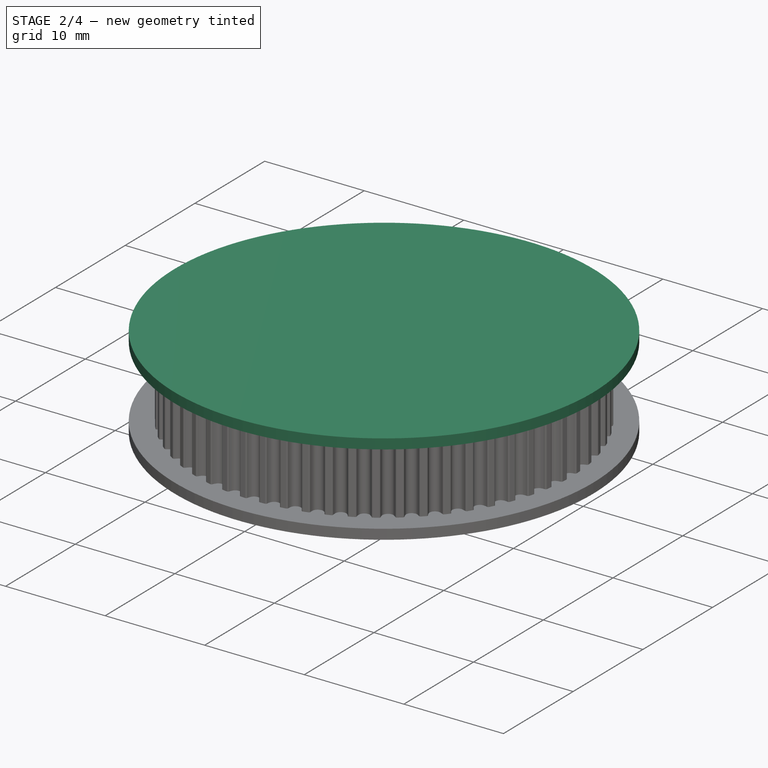
[diagram: stage 2 of 4 — iso view after this stage's code; geometry added in this stage tinted green]
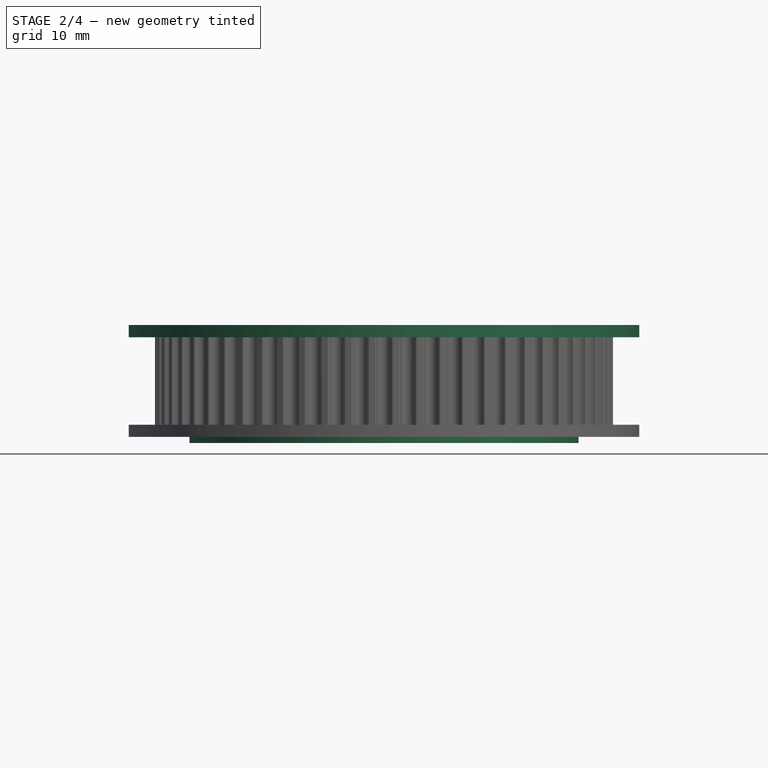
[diagram: stage 2 of 4 — front view after this stage's code; geometry added in this stage tinted green]
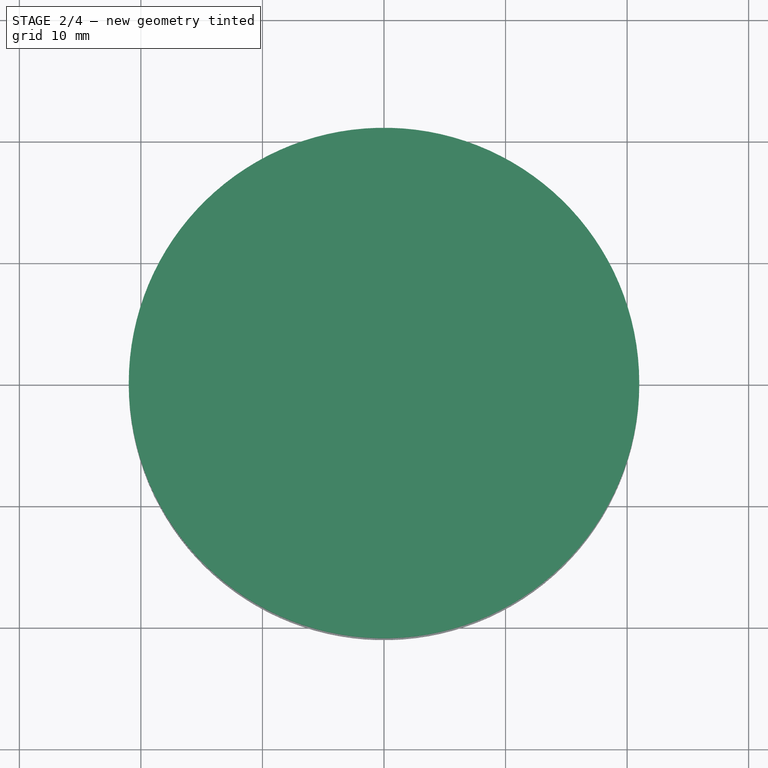
[diagram: stage 2 of 4 — top view after this stage's code; geometry added in this stage tinted green]
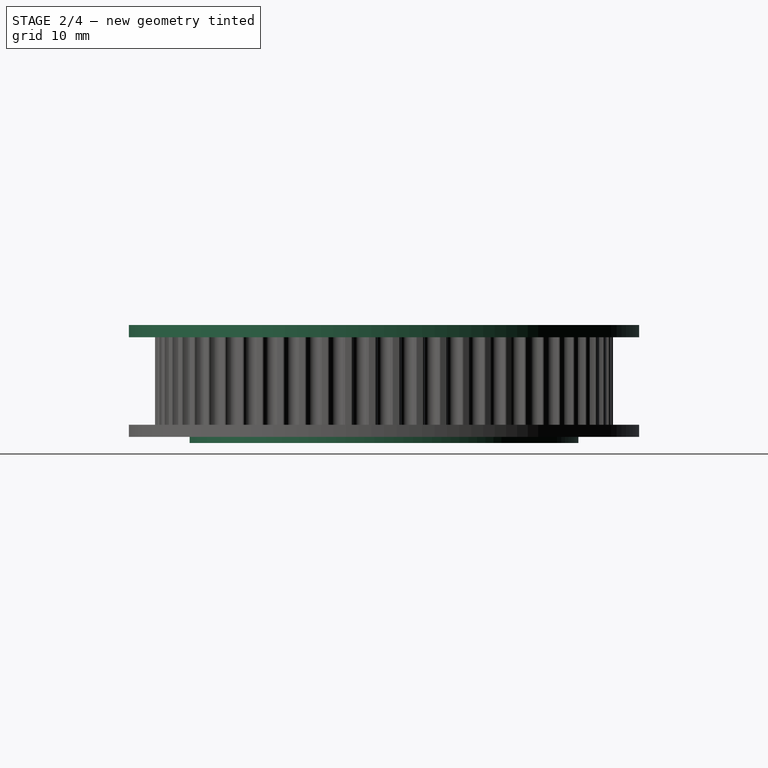
[diagram: stage 2 of 4 — right view after this stage's code; geometry added in this stage tinted green]
FEATURE [Sketcher::SketchObject] SketchTop
  AttachmentOffset = pos=(0,0,7.2) rot=(0,0,1;0rad)
  FullyConstrained = false
  MapMode = 5
  Placement = pos=(0,0,7.2) rot=(0,0,1;0rad)
  Support = -> [XY_Plane]
  sketch-geometry (1):
    g0: Circle CenterX=0 CenterY=0 CenterZ=0 NormalX=0 NormalY=0 NormalZ=1 AngleXU=0 Radius=21
FEATURE [PartDesign::Pad] PadTop
  BaseFeature = -> PadBase
  Direction = (0,0,1)
  Length = 1
  Length2 = 10
  Profile = -> SketchTop
  Refine = true
  Type = 0
FEATURE [PartDesign::Plane] DatumPlane  label="plan_bottom"
  AttachmentOffset = pos=(0,0,-1) rot=(0,0,1;0rad)
  Length = 60
  MapMode = 2
  Placement = pos=(0,0,-1) rot=(0,0,1;0rad)
  ResizeMode = 0
  Support = -> [PadTop]
  Width = 60
  expr: .AttachmentOffset.Base.z = -<<PadBase>>.Length
FEATURE [Sketcher::SketchObject] Sketch  label="sketch_ring_bottom"
  FullyConstrained = true
  MapMode = 5
  Placement = pos=(0,0,-1) rot=(0,0,1;0rad)
  Support = -> [DatumPlane]
  sketch-geometry (1):
    g0: Circle CenterX=0 CenterY=0 CenterZ=0 NormalX=0 NormalY=0 NormalZ=1 AngleXU=0 Radius=16
  constraints (2):
    c: Coincident(g0,g-1)
    c: Diameter(g0) = 32
FEATURE [PartDesign::Pad] Pad001  label="pad_ring_bottom"
  BaseFeature = -> PadTop
  Direction = (0,0,1)
  Length = 0.5
  Length2 = 10
  Profile = -> Sketch
  ReferenceAxis = -> Sketch [N_Axis]
  Refine = true
  Reversed = true
  Type = 0
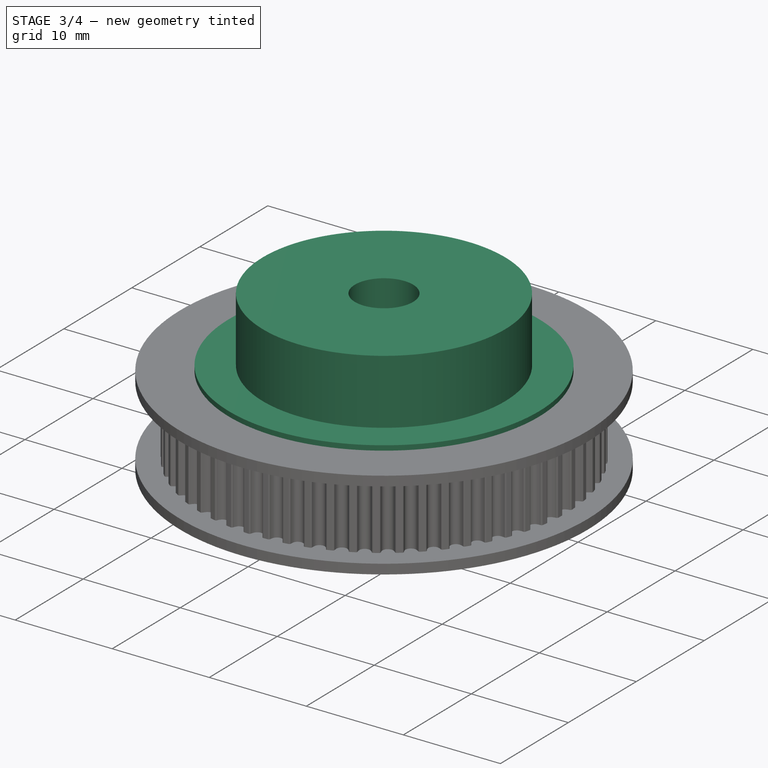
[diagram: stage 3 of 4 — iso view after this stage's code; geometry added in this stage tinted green]
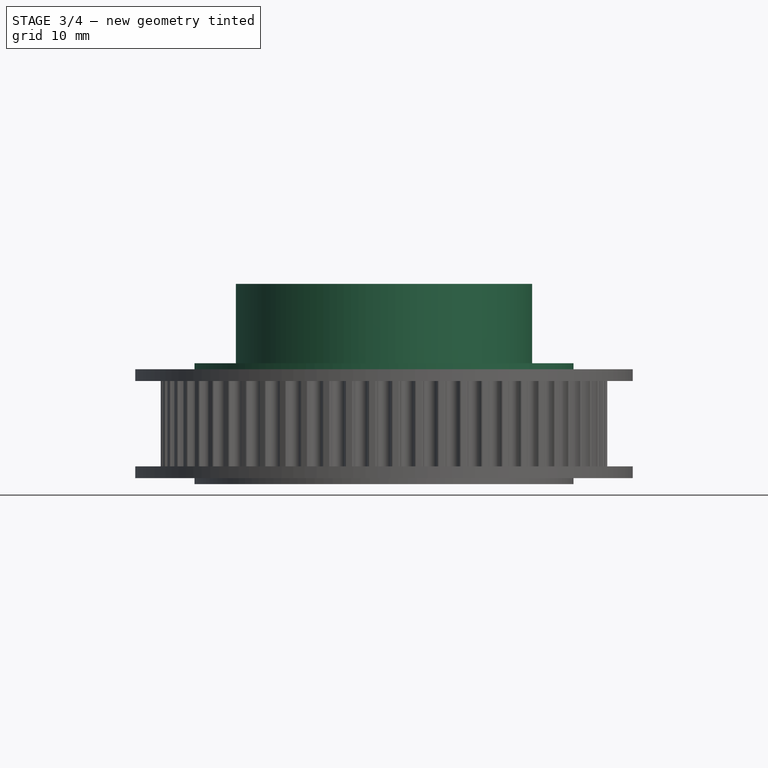
[diagram: stage 3 of 4 — front view after this stage's code; geometry added in this stage tinted green]
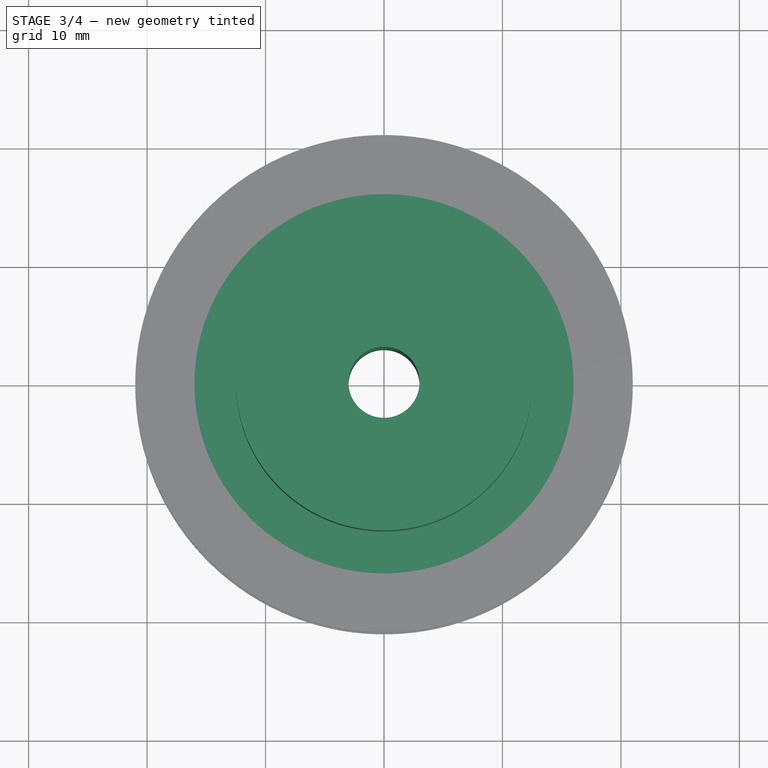
[diagram: stage 3 of 4 — top view after this stage's code; geometry added in this stage tinted green]
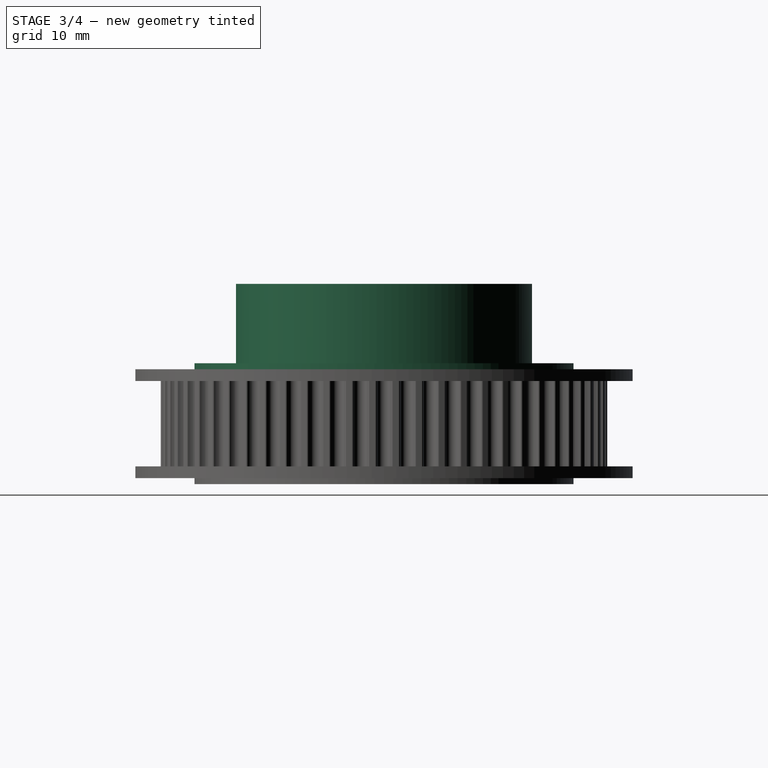
[diagram: stage 3 of 4 — right view after this stage's code; geometry added in this stage tinted green]
FEATURE [PartDesign::Plane] DatumPlane001  label="plan_top"
  AttachmentOffset = pos=(0,0,8.2) rot=(0,0,1;0rad)
  Length = 60
  MapMode = 5
  Placement = pos=(0,0,8.2) rot=(0,0,1;0rad)
  ResizeMode = 0
  Support = -> [XY_Plane]
  Width = 60
  expr: .AttachmentOffset.Base.z = <<Pad>>.Length + <<PadTop>>.Length
FEATURE [Sketcher::SketchObject] Sketch001  label="sketch_ring_top"
  FullyConstrained = true
  MapMode = 5
  Placement = pos=(0,0,8.2) rot=(0,0,1;0rad)
  Support = -> [DatumPlane001]
  sketch-geometry (1):
    g0: Circle CenterX=0 CenterY=0 CenterZ=0 NormalX=0 NormalY=0 NormalZ=1 AngleXU=0 Radius=12.5
  constraints (2):
    c: Coincident(g0,g-1)
    c: Diameter(g0) = 25
FEATURE [PartDesign::Pad] Pad002  label="pad_ring_top"
  BaseFeature = -> Pad001
  Direction = (0,0,1)
  Length = 7.2
  Length2 = 10
  Profile = -> Sketch001
  ReferenceAxis = -> Sketch001 [N_Axis]
  Refine = true
  Type = 0
FEATURE [Sketcher::SketchObject] Sketch002  label="sketch_ring_top2"
  FullyConstrained = true
  MapMode = 5
  Placement = pos=(0,0,8.2) rot=(0,0,1;0rad)
  Support = -> [DatumPlane001]
  sketch-geometry (1):
    g0: Circle CenterX=0 CenterY=0 CenterZ=0 NormalX=0 NormalY=0 NormalZ=1 AngleXU=0 Radius=16
  constraints (2):
    c: Coincident(g0,g-1)
    c: Diameter(g0) = 32
FEATURE [PartDesign::Pad] Pad003  label="pad_ring_top2"
  BaseFeature = -> Pad002
  Direction = (0,0,1)
  Length = 0.5
  Length2 = 10
  Profile = -> Sketch002
  ReferenceAxis = -> Sketch002 [N_Axis]
  Refine = true
  Type = 0
FEATURE [Sketcher::SketchObject] Sketch003  label="sketch_hole"
  FullyConstrained = true
  MapMode = 5
  Support = -> [XY_Plane]
  sketch-geometry (1):
    g0: Circle CenterX=0 CenterY=0 CenterZ=0 NormalX=0 NormalY=0 NormalZ=1 AngleXU=0 Radius=3
  constraints (2):
    c: Coincident(g0,g-1)
    c: Diameter(g0) = 6
FEATURE [PartDesign::Pocket] Pocket  label="pocket_hole"
  BaseFeature = -> Pad003
  Direction = (0,0,-1)
  Length = 0
  Length2 = 5
  Midplane = true
  Profile = -> Sketch003
  ReferenceAxis = -> Sketch003 [N_Axis]
  Refine = true
  Type = 1
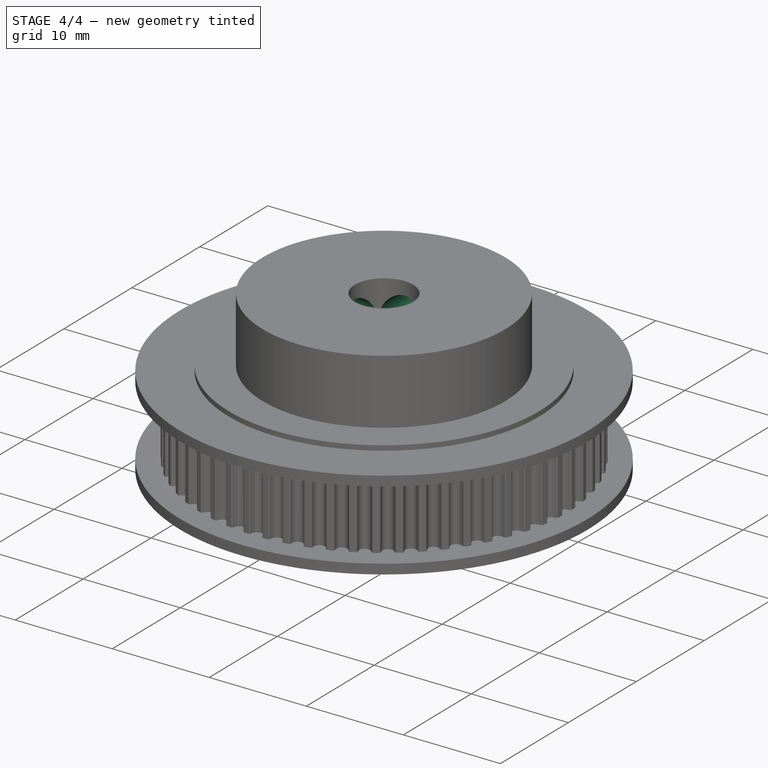
[diagram: stage 4 of 4 — iso view after this stage's code; geometry added in this stage tinted green]
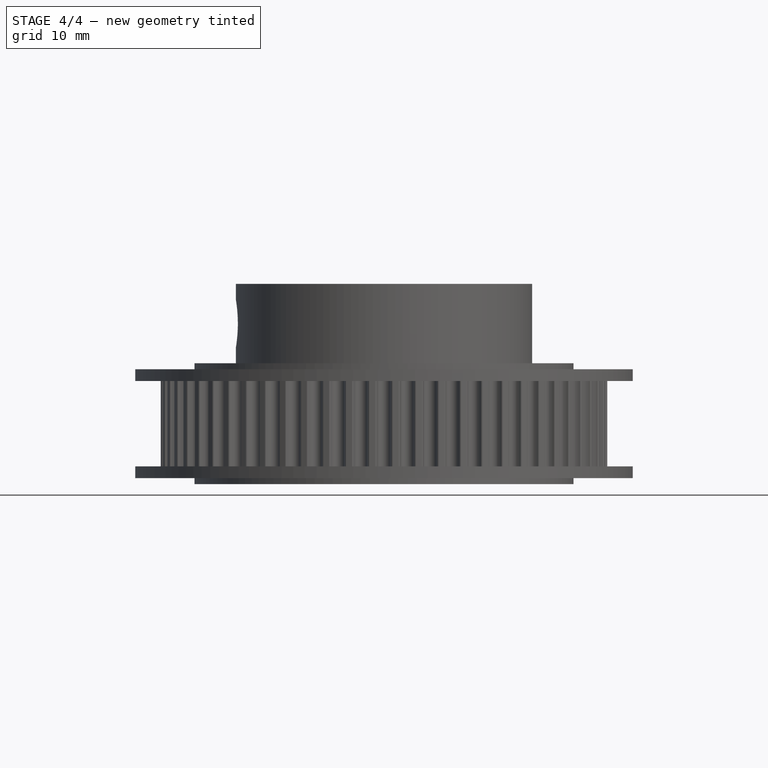
[diagram: stage 4 of 4 — front view after this stage's code; geometry added in this stage tinted green]
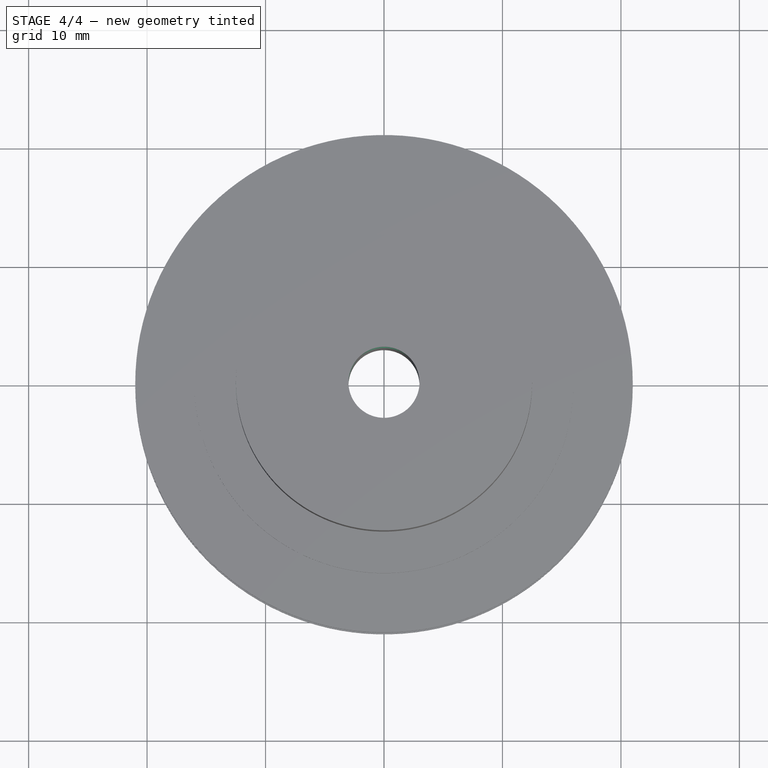
[diagram: stage 4 of 4 — top view after this stage's code; geometry added in this stage tinted green]
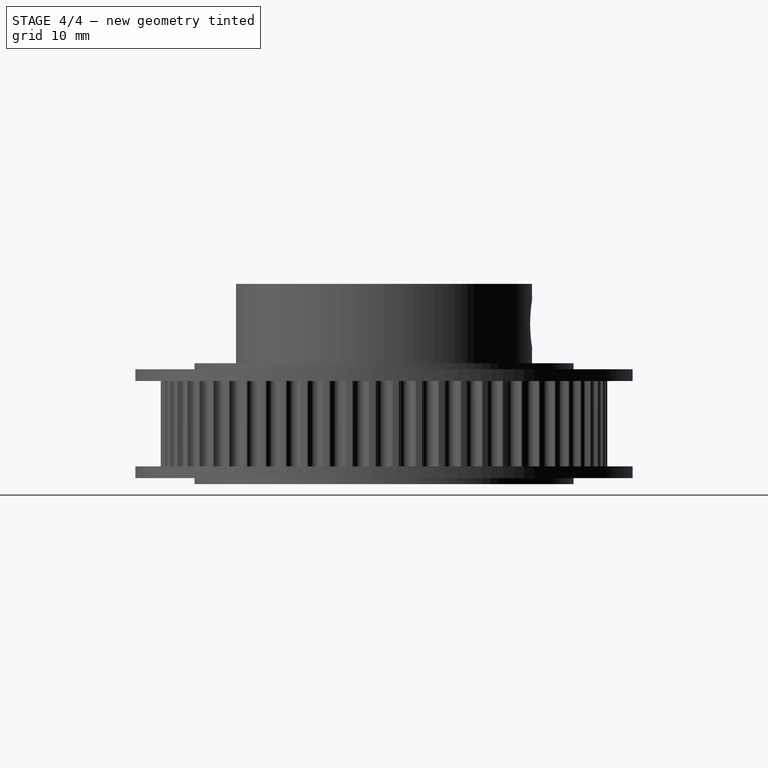
[diagram: stage 4 of 4 — right view after this stage's code; geometry added in this stage tinted green]
FEATURE [Sketcher::SketchObject] Sketch004  label="sketch_mounting_hole1"
  ExternalGeometry = -> [Pocket]
  FullyConstrained = true
  MapMode = 5
  Placement = pos=(0,0,0) rot=(1,0,0;1.5708rad)
  Support = -> [XZ_Plane]
  sketch-geometry (3):
    g0: Circle CenterX=0 CenterY=12.05 CenterZ=0 NormalX=0 NormalY=0 NormalZ=1 AngleXU=0 Radius=2
    g1: GeomPoint X=0 Y=8.7 Z=0
    g2: GeomPoint X=0 Y=15.4 Z=0
  constraints (6):
    c: PointOnObject(g0,g-2)
    c: Diameter(g0) = 4
    c: PointOnObject(g1,g-3)
    c: PointOnObject(g2,g-4)
    c: PointOnObject(g2,g-2)
    c: Symmetric(g2,g1,g0)
FEATURE [PartDesign::Pocket] Pocket001  label="pocket_mounting_hole1"
  BaseFeature = -> Pocket
  Direction = (0,1,-2e-16)
  Length = 5
  Length2 = 5
  Profile = -> Sketch004
  ReferenceAxis = -> Sketch004 [N_Axis]
  Refine = true
  Type = 1
FEATURE [Sketcher::SketchObject] Sketch005  label="sketch_mounting_hole2"
  ExternalGeometry = -> [Pocket001]
  FullyConstrained = true
  MapMode = 5
  Placement = pos=(0,0,0) rot=(0.57735,0.57735,0.57735;2.0944rad)
  Support = -> [YZ_Plane]
  sketch-geometry (3):
    g0: Circle CenterX=0 CenterY=12.05 CenterZ=0 NormalX=0 NormalY=0 NormalZ=1 AngleXU=0 Radius=2
    g1: GeomPoint X=0 Y=15.4 Z=0
    g2: GeomPoint X=0 Y=8.7 Z=0
  constraints (6):
    c: Diameter(g0) = 4
    c: PointOnObject(g0,g-2)
    c: PointOnObject(g1,g-3)
    c: PointOnObject(g2,g-4)
    c: PointOnObject(g1,g-2)
    c: Symmetric(g1,g2,g0)
FEATURE [PartDesign::Pocket] Pocket002  label="pocket_mounting_hole003"
  BaseFeature = -> Pocket001
  Direction = (-1,2e-16,-3e-16)
  Length = 5
  Length2 = 5
  Profile = -> Sketch005
  ReferenceAxis = -> Sketch005 [N_Axis]
  Refine = true
  Type = 1
FEATURE [PartDesign::Body] Gear
  Group = -> [SketchGear,Pad,SketchBase,PadBase,SketchTop,PadTop,DatumPlane,Sketch,Pad001,DatumPlane001,Sketch001,Pad002,Sketch002,Pad003,Sketch003,Pocket,Sketch004,Pocket001,Sketch005,Pocket002]
  Origin = -> Origin
  Tip = -> Pocket002
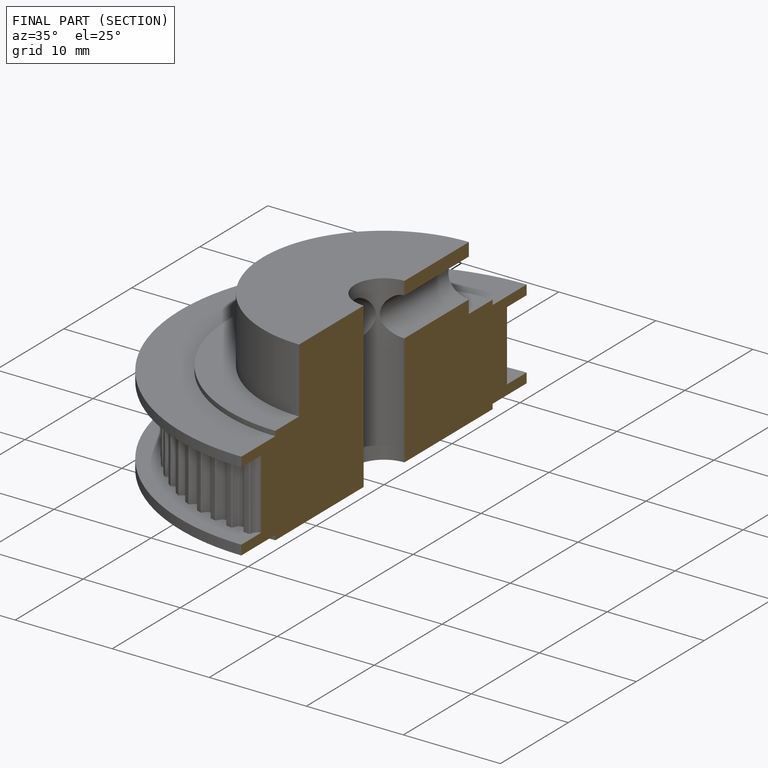
[diagram: finished part — half-section view (interior)]
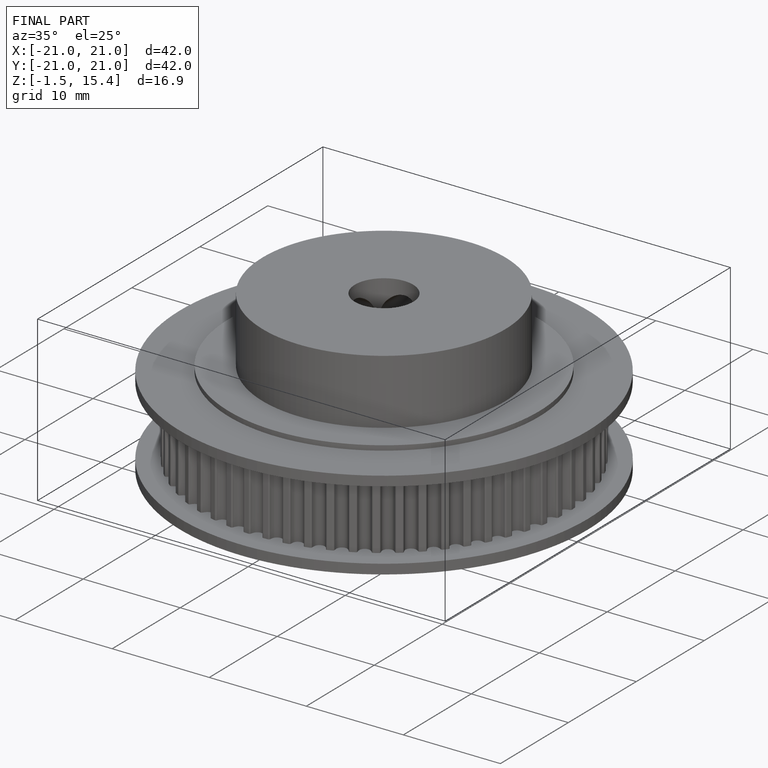
[diagram: finished part — iso view with bounding-box wireframe]
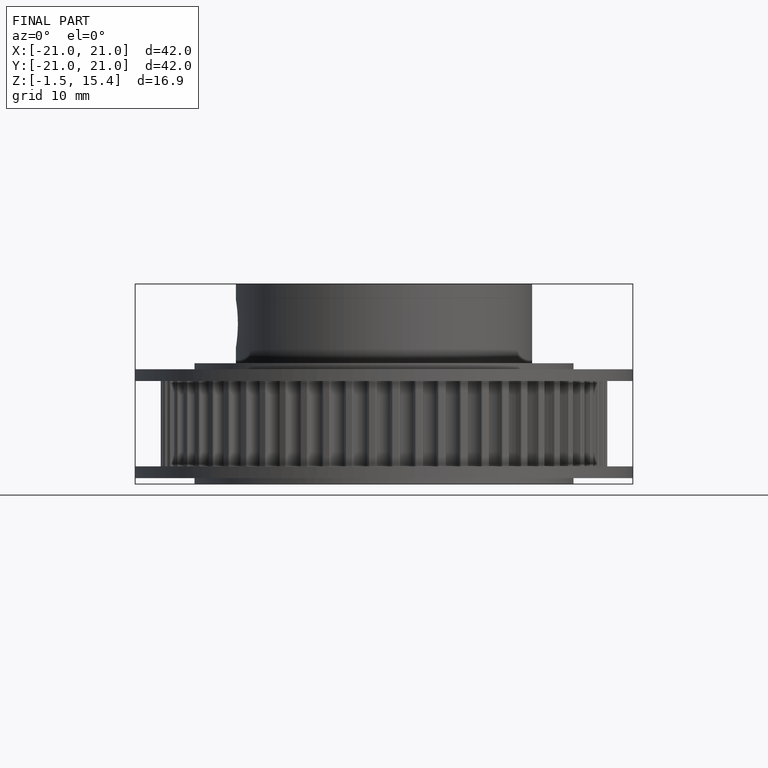
[diagram: finished part — front view with bounding-box wireframe]
